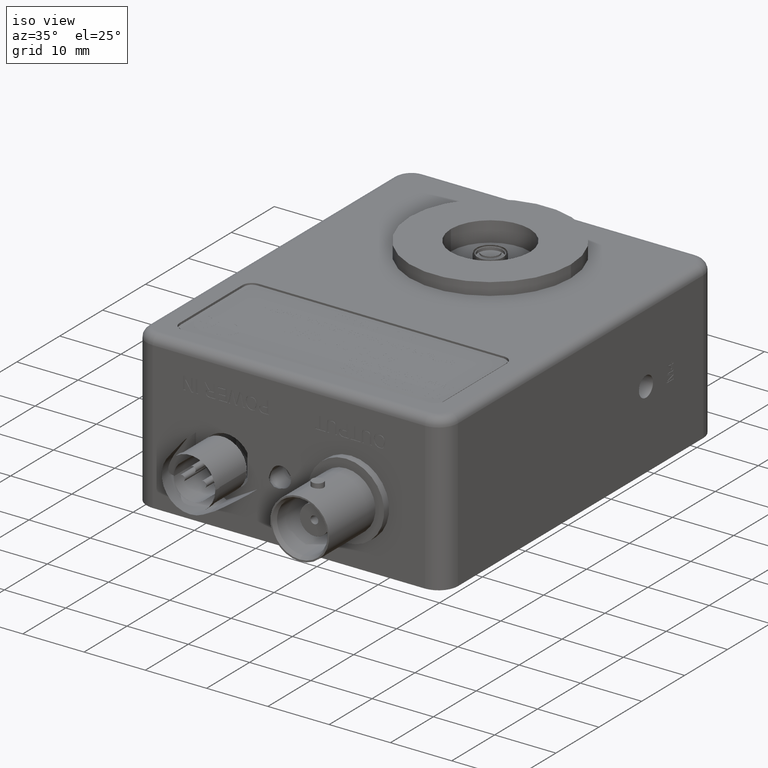
[diagram: clean part render]
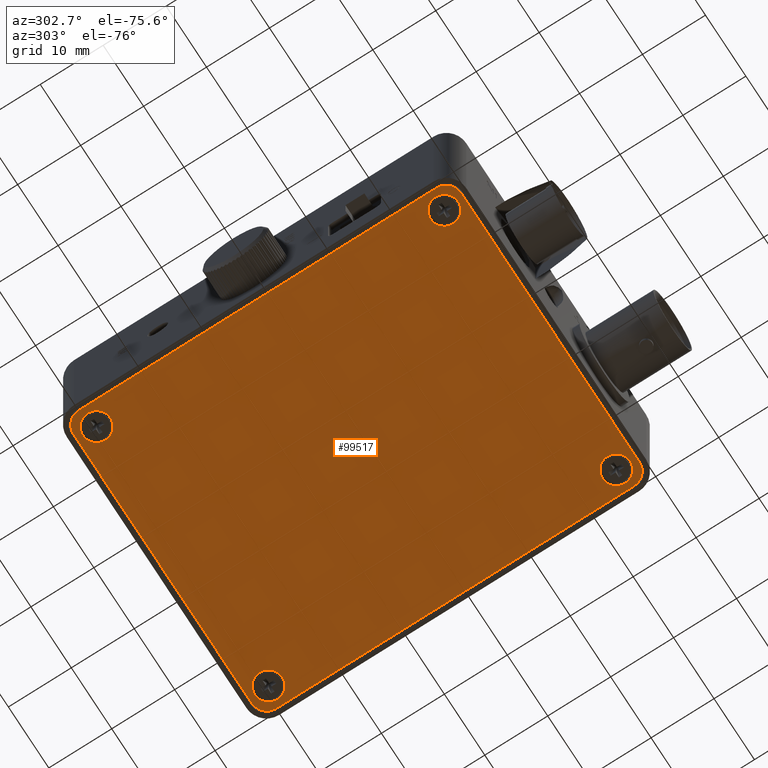
[diagram: tour spotlight — one face highlighted and labeled with its STEP entity id]
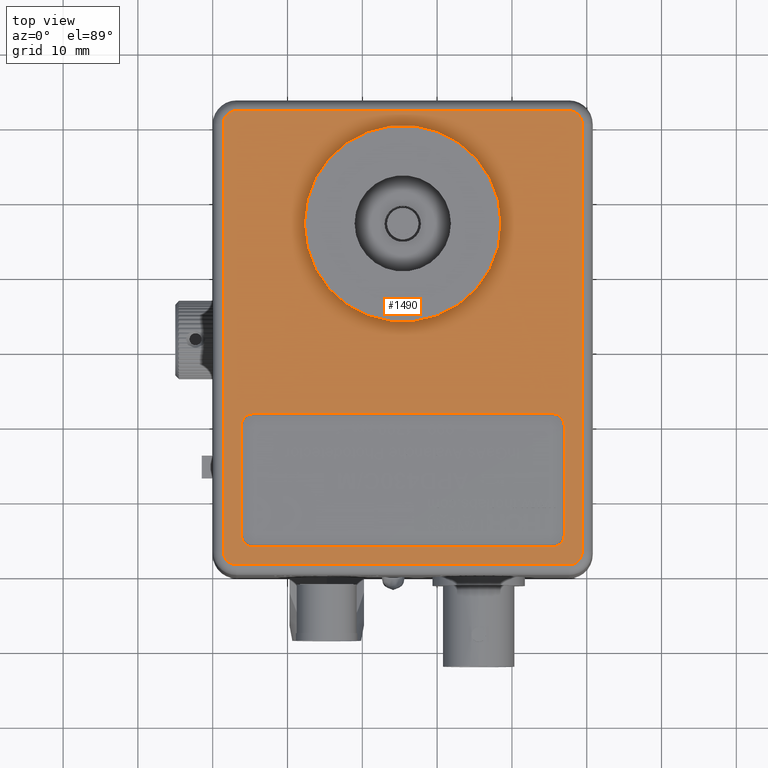
[diagram: tour spotlight — one face highlighted and labeled with its STEP entity id]
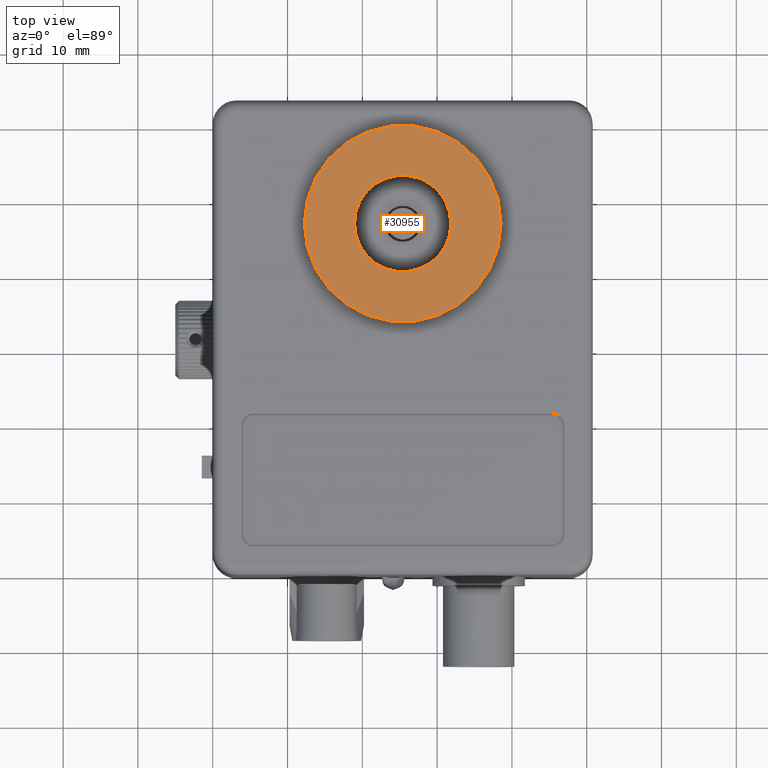
[diagram: tour spotlight — one face highlighted and labeled with its STEP entity id]
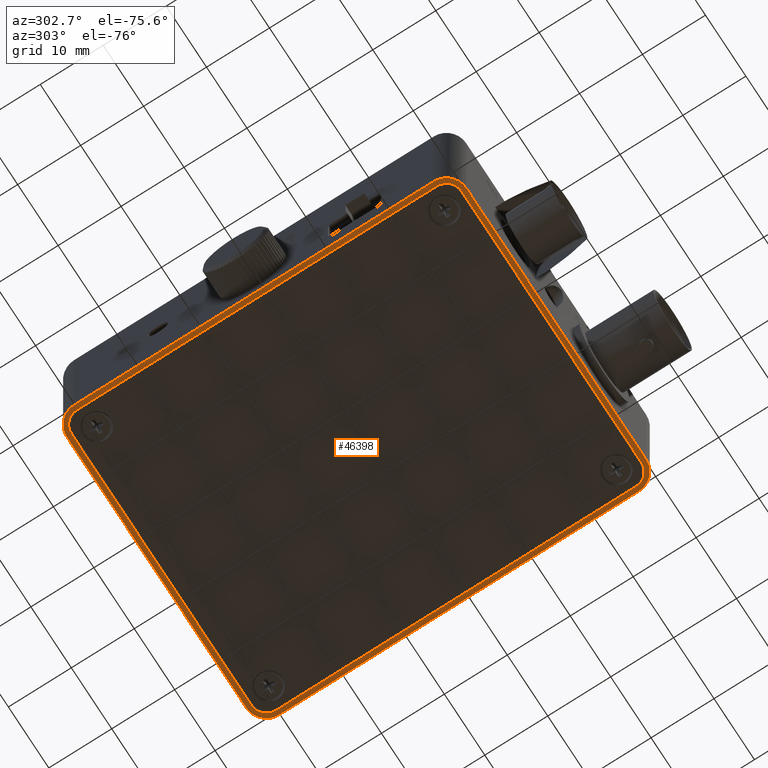
[diagram: tour spotlight — one face highlighted and labeled with its STEP entity id]
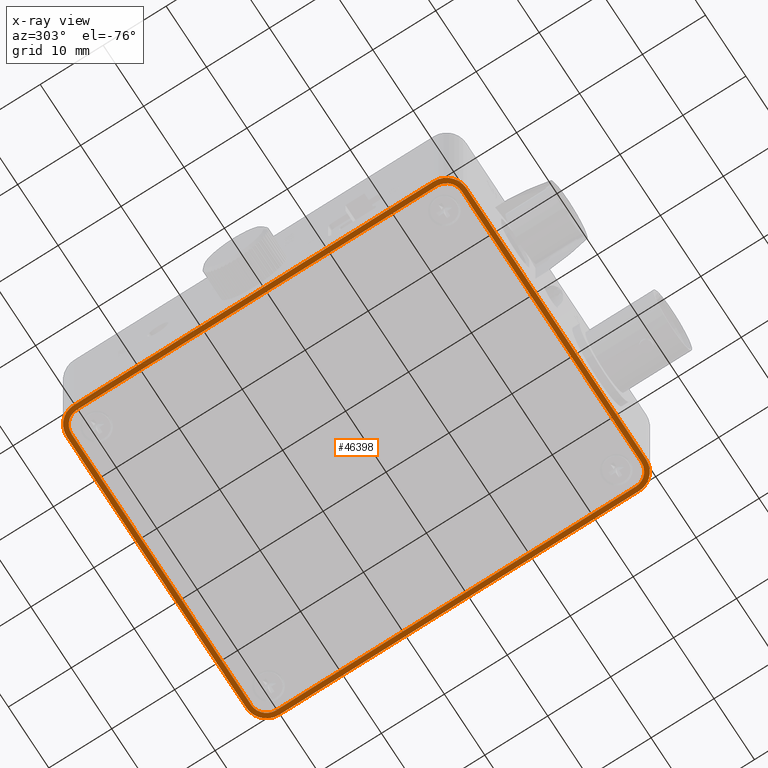
[diagram: x-ray of the same camera — body ghosted, this tour face saturated]
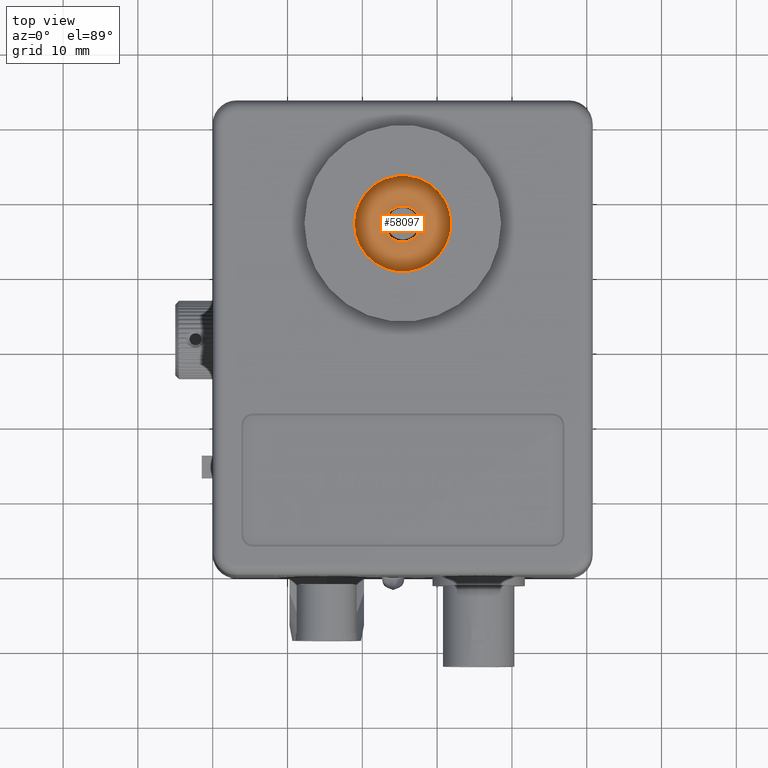
[diagram: tour spotlight — one face highlighted and labeled with its STEP entity id]
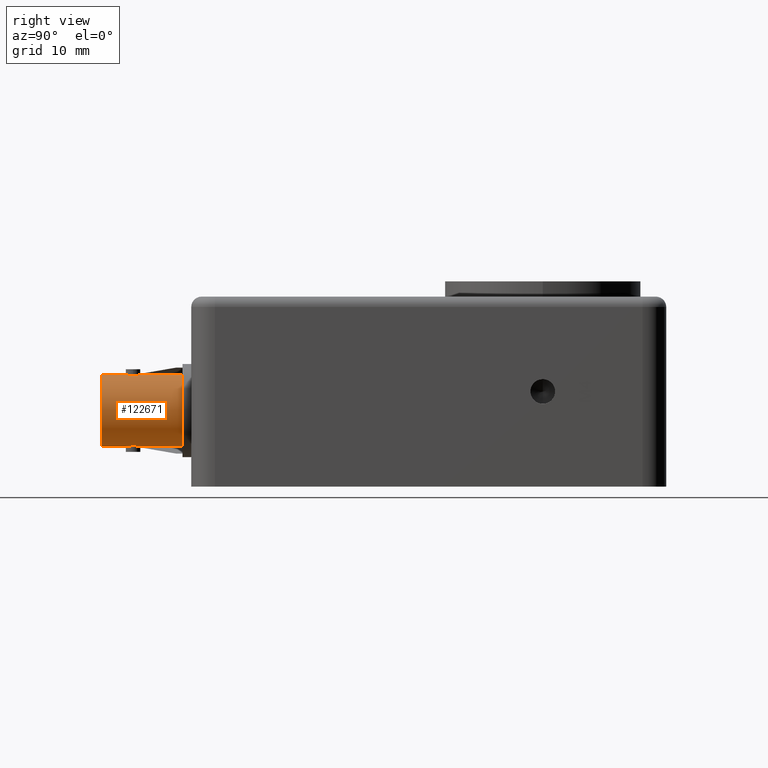
[diagram: tour spotlight — one face highlighted and labeled with its STEP entity id]
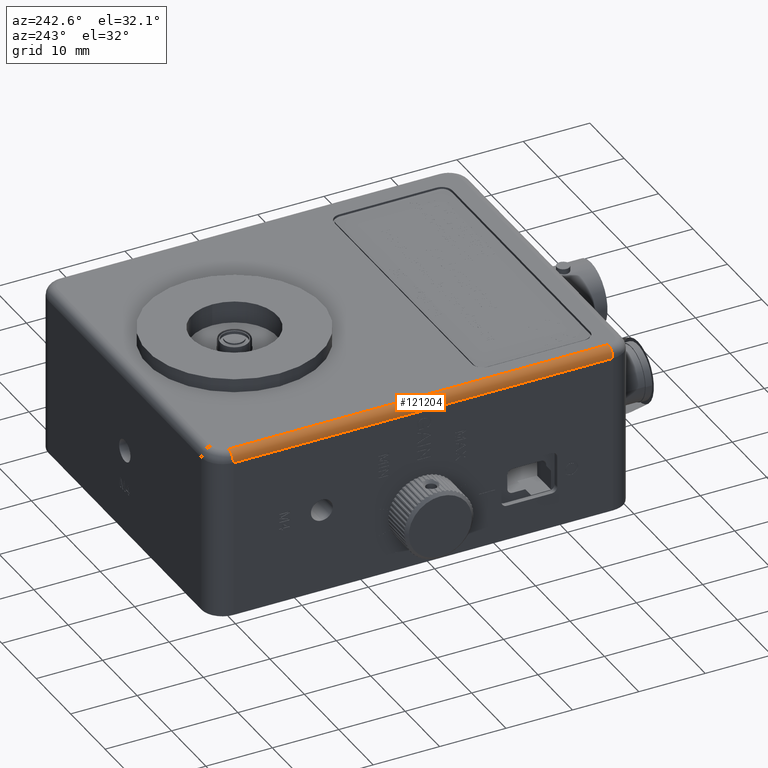
[diagram: tour spotlight — one face highlighted and labeled with its STEP entity id]
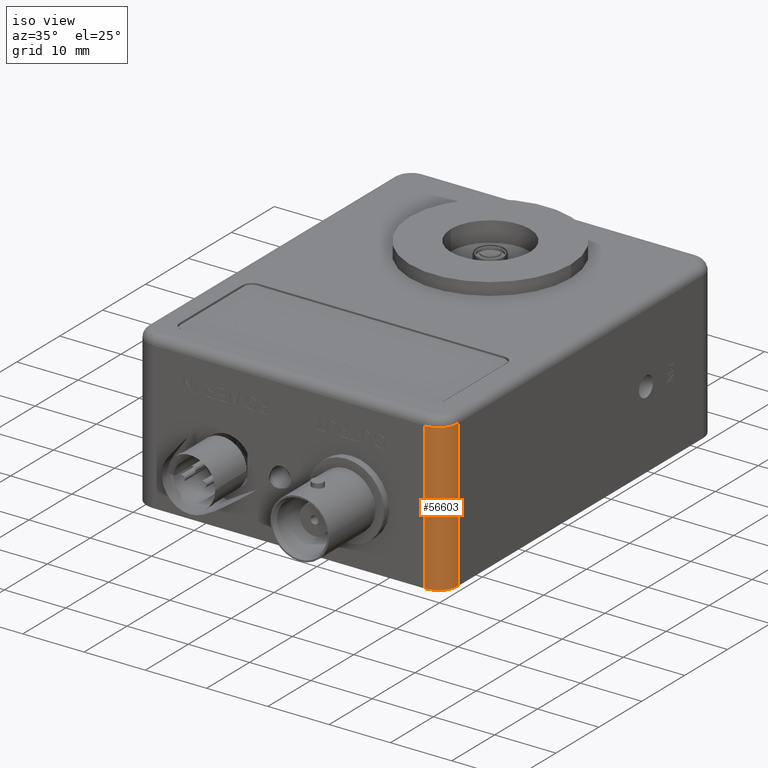
[diagram: tour spotlight — one face highlighted and labeled with its STEP entity id]
A machine part: a face-by-face anatomy tour. The part has 2462 B-rep faces; the first image is the clean iso view, then the 8 largest visible faces are spotlighted one at a time (largest first), each with its STEP entity span.

Face 1 — auxiliary view, entity #99517. In plain terms, the highlighted planar face has unit normal (0, 0, 1).
Definition (entity closure, byte-faithful):
#797 = CIRCLE ( 'NONE', #127661, 2.200000000000000600 ) ;
#1319 = EDGE_LOOP ( 'NONE', ( #59213, #28201 ) ) ;
#3153 = DIRECTION ( 'NONE',  ( -0.0000000000000000000, 1.000000000000000000, -0.0000000000000000000 ) ) ;
#3400 = ORIENTED_EDGE ( 'NONE', *, *, #43403, .T. ) ;
#3489 = AXIS2_PLACEMENT_3D ( 'NONE', #57198, #127380, #67217 ) ;
#5157 = LINE ( 'NONE', #90908, #112165 ) ;
#5551 = FACE_BOUND ( 'NONE', #89493, .T. ) ;
#5942 = PLANE ( 'NONE',  #99817 ) ;
#7509 = CIRCLE ( 'NONE', #68415, 2.200000000000000600 ) ;
#7916 = VERTEX_POINT ( 'NONE', #30430 ) ;
#11961 = EDGE_CURVE ( 'NONE', #52446, #99700, #39361, .T. ) ;
#12348 = CIRCLE ( 'NONE', #33730, 2.412999999999998500 ) ;
#13142 = ORIENTED_EDGE ( 'NONE', *, *, #102057, .F. ) ;
#13149 = AXIS2_PLACEMENT_3D ( 'NONE', #78609, #18438, #88622 ) ;
#13716 = EDGE_CURVE ( 'NONE', #87342, #75694, #19964, .T. ) ;
#14302 = CARTESIAN_POINT ( 'NONE',  ( 61.59499999999999900, 1.587499999999999900, 0.0000000000000000000 ) ) ;
#18438 = DIRECTION ( 'NONE',  ( -0.0000000000000000000, 1.000000000000000000, -0.0000000000000000000 ) ) ;
#18517 = CARTESIAN_POINT ( 'NONE',  ( 59.18199999999999500, 1.587499999999999900, -46.48199999999999900 ) ) ;
#19530 = VERTEX_POINT ( 'NONE', #81972 ) ;
#19964 = CIRCLE ( 'NONE', #95841, 2.412999999999999800 ) ;
#24430 = DIRECTION ( 'NONE',  ( 0.0000000000000000000, 0.0000000000000000000, -1.000000000000000000 ) ) ;
#26532 = AXIS2_PLACEMENT_3D ( 'NONE', #18517, #88720, #28632 ) ;
#26993 = LINE ( 'NONE', #117246, #124370 ) ;
#28201 = ORIENTED_EDGE ( 'NONE', *, *, #52852, .F. ) ;
#28632 = DIRECTION ( 'NONE',  ( 0.0000000000000000000, 0.0000000000000000000, -1.000000000000000000 ) ) ;
#29261 = CARTESIAN_POINT ( 'NONE',  ( 2.412999999999999800, 1.587499999999999900, -2.412999999999999800 ) ) ;
#29441 = ORIENTED_EDGE ( 'NONE', *, *, #62037, .F. ) ;
#30430 = CARTESIAN_POINT ( 'NONE',  ( 3.175000000000003400, 1.587499999999999900, -5.374999999999994700 ) ) ;
#30774 = DIRECTION ( 'NONE',  ( -1.000000000000000000, -0.0000000000000000000, -0.0000000000000000000 ) ) ;
#31332 = CARTESIAN_POINT ( 'NONE',  ( 61.59499999999999900, 1.587499999999999900, -46.48199999999999900 ) ) ;
#32419 = FACE_BOUND ( 'NONE', #32858, .T. ) ;
#32719 = VERTEX_POINT ( 'NONE', #86126 ) ;
#32858 = EDGE_LOOP ( 'NONE', ( #104621, #48513 ) ) ;
#33730 = AXIS2_PLACEMENT_3D ( 'NONE', #105578, #45406, #115606 ) ;
#34613 = CARTESIAN_POINT ( 'NONE',  ( 58.42000000000000200, 1.587499999999999900, -45.71999999999999900 ) ) ;
#36132 = EDGE_LOOP ( 'NONE', ( #3400, #114600, #112415, #85695, #56493, #91880, #38950, #126587 ) ) ;
#36686 = CARTESIAN_POINT ( 'NONE',  ( 3.175000000000002500, 1.587499999999999900, -47.91999999999999500 ) ) ;
#36887 = LINE ( 'NONE', #123590, #90275 ) ;
#37544 = DIRECTION ( 'NONE',  ( -0.0000000000000000000, 1.000000000000000000, -0.0000000000000000000 ) ) ;
#37654 = CARTESIAN_POINT ( 'NONE',  ( 58.41999999999999500, 1.587499999999999900, -0.9749999999999932100 ) ) ;
#38950 = ORIENTED_EDGE ( 'NONE', *, *, #66813, .T. ) ;
#39305 = AXIS2_PLACEMENT_3D ( 'NONE', #72614, #72477, #72309 ) ;
#39354 = DIRECTION ( 'NONE',  ( 8.986342084421918000E-016, 0.0000000000000000000, -1.000000000000000000 ) ) ;
#39361 = CIRCLE ( 'NONE', #39305, 2.200000000000000600 ) ;
#39366 = AXIS2_PLACEMENT_3D ( 'NONE', #29261, #99516, #39354 ) ;
#43403 = EDGE_CURVE ( 'NONE', #87424, #32719, #26993, .T. ) ;
#43843 = CIRCLE ( 'NONE', #3489, 2.200000000000000600 ) ;
#43962 = EDGE_LOOP ( 'NONE', ( #13142, #46177 ) ) ;
#44768 = DIRECTION ( 'NONE',  ( 0.0000000000000000000, 0.0000000000000000000, 1.000000000000000000 ) ) ;
#45280 = ORIENTED_EDGE ( 'NONE', *, *, #122247, .F. ) ;
#45406 = DIRECTION ( 'NONE',  ( -0.0000000000000000000, 1.000000000000000000, -0.0000000000000000000 ) ) ;
#45991 = VECTOR ( 'NONE', #24430, 1000.000000000000000 ) ;
#46177 = ORIENTED_EDGE ( 'NONE', *, *, #107415, .F. ) ;
#48034 = VERTEX_POINT ( 'NONE', #110656 ) ;
#48513 = ORIENTED_EDGE ( 'NONE', *, *, #124310, .F. ) ;
#50480 = CIRCLE ( 'NONE', #39366, 2.412999999999999800 ) ;
#52446 = VERTEX_POINT ( 'NONE', #74763 ) ;
#52486 = EDGE_CURVE ( 'NONE', #103745, #112743, #797, .T. ) ;
#52852 = EDGE_CURVE ( 'NONE', #99700, #52446, #85656, .T. ) ;
#55493 = CARTESIAN_POINT ( 'NONE',  ( 3.175000000000002000, 1.587499999999999900, -45.71999999999999900 ) ) ;
#56045 = FACE_BOUND ( 'NONE', #1319, .T. ) ;
#56252 = CARTESIAN_POINT ( 'NONE',  ( 3.175000000000002900, 1.587499999999999900, -3.174999999999993600 ) ) ;
#56493 = ORIENTED_EDGE ( 'NONE', *, *, #71032, .T. ) ;
#56635 = DIRECTION ( 'NONE',  ( 0.0000000000000000000, -1.000000000000000000, 0.0000000000000000000 ) ) ;
#57190 = CARTESIAN_POINT ( 'NONE',  ( 61.59499999999999900, 1.587499999999999900, -2.412999999999999800 ) ) ;
#57198 = CARTESIAN_POINT ( 'NONE',  ( 58.41999999999999500, 1.587499999999999900, -3.174999999999993600 ) ) ;
#59199 = CARTESIAN_POINT ( 'NONE',  ( 59.18199999999999500, 1.587499999999999900, -2.412999999999999800 ) ) ;
#59213 = ORIENTED_EDGE ( 'NONE', *, *, #11961, .F. ) ;
#60568 = AXIS2_PLACEMENT_3D ( 'NONE', #56252, #126426, #66255 ) ;
#62037 = EDGE_CURVE ( 'NONE', #19530, #95759, #43843, .T. ) ;
#62288 = CARTESIAN_POINT ( 'NONE',  ( 3.175000000000002000, 1.587499999999999900, -43.51999999999999600 ) ) ;
#63460 = DIRECTION ( 'NONE',  ( 1.000000000000000000, 0.0000000000000000000, 0.0000000000000000000 ) ) ;
#63503 = CARTESIAN_POINT ( 'NONE',  ( 58.41999999999999500, 1.587499999999999900, -3.174999999999993600 ) ) ;
#64728 = VERTEX_POINT ( 'NONE', #31332 ) ;
#65498 = DIRECTION ( 'NONE',  ( 0.0000000000000000000, 0.0000000000000000000, 1.000000000000000000 ) ) ;
#66086 = AXIS2_PLACEMENT_3D ( 'NONE', #97679, #37544, #107786 ) ;
#66255 = DIRECTION ( 'NONE',  ( 0.0000000000000000000, 0.0000000000000000000, 1.000000000000000000 ) ) ;
#66813 = EDGE_CURVE ( 'NONE', #106620, #114418, #5157, .T. ) ;
#67217 = DIRECTION ( 'NONE',  ( 0.0000000000000000000, 0.0000000000000000000, 1.000000000000000000 ) ) ;
#68415 = AXIS2_PLACEMENT_3D ( 'NONE', #63503, #3153, #73571 ) ;
#69260 = DIRECTION ( 'NONE',  ( 0.0000000000000000000, 0.0000000000000000000, -1.000000000000000000 ) ) ;
#70089 = EDGE_CURVE ( 'NONE', #64728, #106620, #102953, .T. ) ;
#71032 = EDGE_CURVE ( 'NONE', #75694, #64728, #72682, .T. ) ;
#72309 = DIRECTION ( 'NONE',  ( 0.0000000000000000000, 0.0000000000000000000, 1.000000000000000000 ) ) ;
#72477 = DIRECTION ( 'NONE',  ( -0.0000000000000000000, 1.000000000000000000, -0.0000000000000000000 ) ) ;
#72614 = CARTESIAN_POINT ( 'NONE',  ( 58.42000000000000200, 1.587499999999999900, -45.71999999999999900 ) ) ;
#72682 = LINE ( 'NONE', #14302, #45991 ) ;
#73571 = DIRECTION ( 'NONE',  ( 0.0000000000000000000, 0.0000000000000000000, 1.000000000000000000 ) ) ;
#74763 = CARTESIAN_POINT ( 'NONE',  ( 58.42000000000000200, 1.587499999999999900, -43.51999999999999600 ) ) ;
#75694 = VERTEX_POINT ( 'NONE', #57190 ) ;
#78609 = CARTESIAN_POINT ( 'NONE',  ( 3.175000000000002900, 1.587499999999999900, -3.174999999999993600 ) ) ;
#79276 = CARTESIAN_POINT ( 'NONE',  ( 2.412999999999998900, 1.587499999999999900, -48.89500000000000300 ) ) ;
#79363 = EDGE_CURVE ( 'NONE', #114418, #87424, #12348, .T. ) ;
#80721 = CARTESIAN_POINT ( 'NONE',  ( 59.18199999999998800, 1.587499999999999900, 0.0000000000000000000 ) ) ;
#80940 = CIRCLE ( 'NONE', #66086, 2.200000000000000600 ) ;
#81972 = CARTESIAN_POINT ( 'NONE',  ( 58.41999999999999500, 1.587499999999999900, -5.374999999999994700 ) ) ;
#82717 = CARTESIAN_POINT ( 'NONE',  ( 58.42000000000000200, 1.587499999999999900, -47.91999999999999500 ) ) ;
#82722 = FACE_BOUND ( 'NONE', #43962, .T. ) ;
#83239 = CIRCLE ( 'NONE', #60568, 2.200000000000000200 ) ;
#85656 = CIRCLE ( 'NONE', #102508, 2.200000000000000600 ) ;
#85695 = ORIENTED_EDGE ( 'NONE', *, *, #13716, .T. ) ;
#86126 = CARTESIAN_POINT ( 'NONE',  ( 0.0000000000000000000, 1.587499999999999900, -2.412999999999999800 ) ) ;
#87342 = VERTEX_POINT ( 'NONE', #80721 ) ;
#87424 = VERTEX_POINT ( 'NONE', #101758 ) ;
#88622 = DIRECTION ( 'NONE',  ( 0.0000000000000000000, 0.0000000000000000000, 1.000000000000000000 ) ) ;
#88720 = DIRECTION ( 'NONE',  ( -0.0000000000000000000, 1.000000000000000000, -0.0000000000000000000 ) ) ;
#89493 = EDGE_LOOP ( 'NONE', ( #45280, #29441 ) ) ;
#90275 = VECTOR ( 'NONE', #63460, 1000.000000000000000 ) ;
#90908 = CARTESIAN_POINT ( 'NONE',  ( 0.0000000000000000000, 1.587499999999999900, -48.89500000000000300 ) ) ;
#91880 = ORIENTED_EDGE ( 'NONE', *, *, #70089, .T. ) ;
#93857 = VERTEX_POINT ( 'NONE', #116121 ) ;
#95759 = VERTEX_POINT ( 'NONE', #37654 ) ;
#95841 = AXIS2_PLACEMENT_3D ( 'NONE', #59199, #129398, #69260 ) ;
#97070 = DIRECTION ( 'NONE',  ( -0.0000000000000000000, -0.0000000000000000000, 1.000000000000000000 ) ) ;
#97679 = CARTESIAN_POINT ( 'NONE',  ( 3.175000000000002000, 1.587499999999999900, -45.71999999999999900 ) ) ;
#99516 = DIRECTION ( 'NONE',  ( -0.0000000000000000000, 1.000000000000000000, -0.0000000000000000000 ) ) ;
#99517 = ADVANCED_FACE ( 'NONE', ( #32419, #56045, #5551, #82722, #109414 ), #5942, .F. ) ;
#99700 = VERTEX_POINT ( 'NONE', #82717 ) ;
#99817 = AXIS2_PLACEMENT_3D ( 'NONE', #116709, #56635, #126824 ) ;
#101758 = CARTESIAN_POINT ( 'NONE',  ( 0.0000000000000000000, 1.587499999999999900, -46.48199999999999900 ) ) ;
#102057 = EDGE_CURVE ( 'NONE', #93857, #7916, #83239, .T. ) ;
#102508 = AXIS2_PLACEMENT_3D ( 'NONE', #34613, #104907, #44768 ) ;
#102953 = CIRCLE ( 'NONE', #26532, 2.412999999999998500 ) ;
#103745 = VERTEX_POINT ( 'NONE', #62288 ) ;
#104621 = ORIENTED_EDGE ( 'NONE', *, *, #52486, .F. ) ;
#104907 = DIRECTION ( 'NONE',  ( -0.0000000000000000000, 1.000000000000000000, -0.0000000000000000000 ) ) ;
#105578 = CARTESIAN_POINT ( 'NONE',  ( 2.412999999999999800, 1.587499999999999900, -46.48199999999999900 ) ) ;
#106620 = VERTEX_POINT ( 'NONE', #117478 ) ;
#107415 = EDGE_CURVE ( 'NONE', #7916, #93857, #116677, .T. ) ;
#107786 = DIRECTION ( 'NONE',  ( 0.0000000000000000000, 0.0000000000000000000, 1.000000000000000000 ) ) ;
#107993 = EDGE_CURVE ( 'NONE', #32719, #48034, #50480, .T. ) ;
#109414 = FACE_OUTER_BOUND ( 'NONE', #36132, .T. ) ;
#110656 = CARTESIAN_POINT ( 'NONE',  ( 2.412999999999998900, 1.587499999999999900, 0.0000000000000000000 ) ) ;
#112165 = VECTOR ( 'NONE', #30774, 1000.000000000000000 ) ;
#112415 = ORIENTED_EDGE ( 'NONE', *, *, #129128, .T. ) ;
#112743 = VERTEX_POINT ( 'NONE', #36686 ) ;
#114418 = VERTEX_POINT ( 'NONE', #79276 ) ;
#114600 = ORIENTED_EDGE ( 'NONE', *, *, #107993, .T. ) ;
#115606 = DIRECTION ( 'NONE',  ( 0.0000000000000000000, 0.0000000000000000000, -1.000000000000000000 ) ) ;
#116121 = CARTESIAN_POINT ( 'NONE',  ( 3.175000000000002900, 1.587499999999999900, -0.9749999999999936500 ) ) ;
#116677 = CIRCLE ( 'NONE', #13149, 2.200000000000000200 ) ;
#116709 = CARTESIAN_POINT ( 'NONE',  ( 0.0000000000000000000, 1.587499999999999900, -48.89500000000000300 ) ) ;
#117246 = CARTESIAN_POINT ( 'NONE',  ( 0.0000000000000000000, 1.587499999999999900, 0.0000000000000000000 ) ) ;
#117478 = CARTESIAN_POINT ( 'NONE',  ( 59.18199999999998800, 1.587499999999999900, -48.89500000000000300 ) ) ;
#122247 = EDGE_CURVE ( 'NONE', #95759, #19530, #7509, .T. ) ;
#123590 = CARTESIAN_POINT ( 'NONE',  ( 0.0000000000000000000, 1.587499999999999900, 0.0000000000000000000 ) ) ;
#124310 = EDGE_CURVE ( 'NONE', #112743, #103745, #80940, .T. ) ;
#124370 = VECTOR ( 'NONE', #97070, 1000.000000000000000 ) ;
#125637 = DIRECTION ( 'NONE',  ( -0.0000000000000000000, 1.000000000000000000, -0.0000000000000000000 ) ) ;
#126426 = DIRECTION ( 'NONE',  ( -0.0000000000000000000, 1.000000000000000000, -0.0000000000000000000 ) ) ;
#126587 = ORIENTED_EDGE ( 'NONE', *, *, #79363, .T. ) ;
#126824 = DIRECTION ( 'NONE',  ( 0.0000000000000000000, -0.0000000000000000000, -1.000000000000000000 ) ) ;
#127380 = DIRECTION ( 'NONE',  ( -0.0000000000000000000, 1.000000000000000000, -0.0000000000000000000 ) ) ;
#127661 = AXIS2_PLACEMENT_3D ( 'NONE', #55493, #125637, #65498 ) ;
#129128 = EDGE_CURVE ( 'NONE', #48034, #87342, #36887, .T. ) ;
#129398 = DIRECTION ( 'NONE',  ( -0.0000000000000000000, 1.000000000000000000, -0.0000000000000000000 ) ) ;

Face 2 — top view, entity #1490. In plain terms, the highlighted planar face has unit normal (0, 0, -1).
Definition (entity closure, byte-faithful):
#840 = LINE ( 'NONE', #36320, #24567 ) ;
#963 = ORIENTED_EDGE ( 'NONE', *, *, #17775, .F. ) ;
#1366 = ORIENTED_EDGE ( 'NONE', *, *, #4163, .F. ) ;
#1490 = ADVANCED_FACE ( 'NONE', ( #59475, #56367, #109735 ), #101130, .F. ) ;
#4163 = EDGE_CURVE ( 'NONE', #76035, #122600, #18212, .T. ) ;
#5881 = CARTESIAN_POINT ( 'NONE',  ( 3.174999999999999800, 1.397000000000000000, 25.39999999999999900 ) ) ;
#5894 = EDGE_CURVE ( 'NONE', #40475, #88508, #77343, .T. ) ;
#6683 = AXIS2_PLACEMENT_3D ( 'NONE', #78449, #78309, #78154 ) ;
#6985 = LINE ( 'NONE', #45138, #57464 ) ;
#7158 = CARTESIAN_POINT ( 'NONE',  ( 0.0000000000000000000, 1.397000000000002500, 25.39999999999999900 ) ) ;
#7381 = VECTOR ( 'NONE', #117918, 1000.000000000000000 ) ;
#8399 = EDGE_CURVE ( 'NONE', #83502, #117762, #74736, .T. ) ;
#8637 = ORIENTED_EDGE ( 'NONE', *, *, #5894, .T. ) ;
#8742 = CARTESIAN_POINT ( 'NONE',  ( 49.40299999999999900, 60.32500000000000300, 25.39999999999999900 ) ) ;
#9052 = VERTEX_POINT ( 'NONE', #27507 ) ;
#10336 = VERTEX_POINT ( 'NONE', #16543 ) ;
#11369 = VERTEX_POINT ( 'NONE', #113035 ) ;
#11552 = ORIENTED_EDGE ( 'NONE', *, *, #67377, .F. ) ;
#12649 = DIRECTION ( 'NONE',  ( 0.0000000000000000000, 1.000000000000000000, 0.0000000000000000000 ) ) ;
#14706 = VERTEX_POINT ( 'NONE', #5881 ) ;
#14847 = AXIS2_PLACEMENT_3D ( 'NONE', #118657, #118790, #118488 ) ;
#16185 = EDGE_LOOP ( 'NONE', ( #50539, #46494, #963, #1366, #11552, #35687, #69899, #115812 ) ) ;
#16543 = CARTESIAN_POINT ( 'NONE',  ( 46.98999999999999500, 5.397500000000004400, 25.39999999999999900 ) ) ;
#17363 = VERTEX_POINT ( 'NONE', #104144 ) ;
#17775 = EDGE_CURVE ( 'NONE', #122600, #9052, #119229, .T. ) ;
#18212 = CIRCLE ( 'NONE', #6683, 1.587499999999997700 ) ;
#19990 = EDGE_LOOP ( 'NONE', ( #121432, #122086 ) ) ;
#20512 = CARTESIAN_POINT ( 'NONE',  ( 45.40249999999999600, 3.810000000000005400, 25.39999999999999900 ) ) ;
#20683 = VECTOR ( 'NONE', #111227, 1000.000000000000000 ) ;
#22628 = CARTESIAN_POINT ( 'NONE',  ( 1.397000000000000000, 3.174999999999999800, 25.39999999999999900 ) ) ;
#22780 = EDGE_CURVE ( 'NONE', #11369, #17363, #124120, .T. ) ;
#24567 = VECTOR ( 'NONE', #116632, 1000.000000000000000 ) ;
#25277 = ORIENTED_EDGE ( 'NONE', *, *, #37204, .T. ) ;
#25562 = DIRECTION ( 'NONE',  ( 0.0000000000000000000, 0.0000000000000000000, 1.000000000000000000 ) ) ;
#26096 = DIRECTION ( 'NONE',  ( -0.0000000000000000000, -0.0000000000000000000, 1.000000000000000000 ) ) ;
#26562 = AXIS2_PLACEMENT_3D ( 'NONE', #37862, #108111, #47975 ) ;
#27004 = EDGE_CURVE ( 'NONE', #55251, #121103, #72495, .T. ) ;
#27507 = CARTESIAN_POINT ( 'NONE',  ( 3.809999999999999200, 5.397500000000004400, 25.39999999999999900 ) ) ;
#29906 = DIRECTION ( 'NONE',  ( -0.0000000000000000000, -0.0000000000000000000, 1.000000000000000000 ) ) ;
#30434 = CARTESIAN_POINT ( 'NONE',  ( 45.40249999999999600, 21.58999999999999600, 25.39999999999999900 ) ) ;
#33822 = CARTESIAN_POINT ( 'NONE',  ( 1.397000000000000000, 63.50000000000000000, 25.39999999999999900 ) ) ;
#35185 = DIRECTION ( 'NONE',  ( -0.0000000000000000000, -0.0000000000000000000, 1.000000000000000000 ) ) ;
#35687 = ORIENTED_EDGE ( 'NONE', *, *, #27004, .F. ) ;
#36320 = CARTESIAN_POINT ( 'NONE',  ( 45.40249999999999600, 3.810000000000005400, 25.39999999999999900 ) ) ;
#37204 = EDGE_CURVE ( 'NONE', #95157, #109101, #127419, .T. ) ;
#37807 = ORIENTED_EDGE ( 'NONE', *, *, #111270, .T. ) ;
#37822 = CARTESIAN_POINT ( 'NONE',  ( 45.40249999999999600, 20.00250000000000100, 25.39999999999999900 ) ) ;
#37862 = CARTESIAN_POINT ( 'NONE',  ( 45.40249999999999600, 5.397500000000004400, 25.39999999999999900 ) ) ;
#37949 = EDGE_LOOP ( 'NONE', ( #37807, #76541, #25277, #61274, #66115, #8637, #115544, #126383 ) ) ;
#38472 = DIRECTION ( 'NONE',  ( -1.000000000000000000, 0.0000000000000000000, 0.0000000000000000000 ) ) ;
#38491 = DIRECTION ( 'NONE',  ( -0.0000000000000000000, -0.0000000000000000000, 1.000000000000000000 ) ) ;
#38654 = CARTESIAN_POINT ( 'NONE',  ( 47.62500000000000000, 3.174999999999999800, 25.39999999999999900 ) ) ;
#40475 = VERTEX_POINT ( 'NONE', #121363 ) ;
#41416 = CARTESIAN_POINT ( 'NONE',  ( 3.810000000000001800, 20.00250000000000100, 25.39999999999999900 ) ) ;
#42952 = CARTESIAN_POINT ( 'NONE',  ( 5.397499999999999100, 21.58999999999999600, 25.39999999999999900 ) ) ;
#45138 = CARTESIAN_POINT ( 'NONE',  ( 46.98999999999999500, 5.397500000000004400, 25.39999999999999900 ) ) ;
#46494 = ORIENTED_EDGE ( 'NONE', *, *, #71627, .F. ) ;
#47935 = DIRECTION ( 'NONE',  ( -1.000000000000000000, 0.0000000000000000000, 0.0000000000000000000 ) ) ;
#47975 = DIRECTION ( 'NONE',  ( 1.000000000000000000, 0.0000000000000000000, 0.0000000000000000000 ) ) ;
#48240 = DIRECTION ( 'NONE',  ( -0.0000000000000000000, -0.0000000000000000000, 1.000000000000000000 ) ) ;
#49252 = AXIS2_PLACEMENT_3D ( 'NONE', #86223, #26096, #96358 ) ;
#50539 = ORIENTED_EDGE ( 'NONE', *, *, #91832, .F. ) ;
#50617 = LINE ( 'NONE', #80962, #20683 ) ;
#50711 = EDGE_CURVE ( 'NONE', #126330, #95157, #92111, .T. ) ;
#51597 = VERTEX_POINT ( 'NONE', #122989 ) ;
#55251 = VERTEX_POINT ( 'NONE', #89713 ) ;
#56367 = FACE_BOUND ( 'NONE', #16185, .T. ) ;
#57464 = VECTOR ( 'NONE', #125427, 1000.000000000000000 ) ;
#59475 = FACE_OUTER_BOUND ( 'NONE', #37949, .T. ) ;
#60141 = CARTESIAN_POINT ( 'NONE',  ( 3.809999999999999200, 5.397500000000004400, 25.39999999999999900 ) ) ;
#61274 = ORIENTED_EDGE ( 'NONE', *, *, #100301, .T. ) ;
#62429 = EDGE_CURVE ( 'NONE', #88508, #83502, #117344, .T. ) ;
#66115 = ORIENTED_EDGE ( 'NONE', *, *, #80112, .T. ) ;
#67107 = CARTESIAN_POINT ( 'NONE',  ( 5.397499999999999100, 21.58999999999999600, 25.39999999999999900 ) ) ;
#67377 = EDGE_CURVE ( 'NONE', #121103, #76035, #96416, .T. ) ;
#67636 = CARTESIAN_POINT ( 'NONE',  ( 1.397000000000000000, 60.32500000000000300, 25.39999999999999900 ) ) ;
#69720 = VECTOR ( 'NONE', #73212, 1000.000000000000000 ) ;
#69899 = ORIENTED_EDGE ( 'NONE', *, *, #110299, .F. ) ;
#70834 = VECTOR ( 'NONE', #104509, 1000.000000000000000 ) ;
#71627 = EDGE_CURVE ( 'NONE', #9052, #51597, #86530, .T. ) ;
#72495 = CIRCLE ( 'NONE', #98322, 1.587499999999998600 ) ;
#73212 = DIRECTION ( 'NONE',  ( -1.000000000000000000, -0.0000000000000000000, -0.0000000000000000000 ) ) ;
#74736 = CIRCLE ( 'NONE', #14847, 1.778000000000001800 ) ;
#75527 = AXIS2_PLACEMENT_3D ( 'NONE', #90043, #29906, #100184 ) ;
#76035 = VERTEX_POINT ( 'NONE', #67107 ) ;
#76228 = VERTEX_POINT ( 'NONE', #20512 ) ;
#76346 = AXIS2_PLACEMENT_3D ( 'NONE', #85731, #25562, #95837 ) ;
#76541 = ORIENTED_EDGE ( 'NONE', *, *, #50711, .T. ) ;
#77343 = CIRCLE ( 'NONE', #87757, 1.778000000000001800 ) ;
#77797 = CIRCLE ( 'NONE', #26562, 1.587499999999998600 ) ;
#78154 = DIRECTION ( 'NONE',  ( 1.000000000000000000, 0.0000000000000000000, 0.0000000000000000000 ) ) ;
#78309 = DIRECTION ( 'NONE',  ( 0.0000000000000000000, 0.0000000000000000000, 1.000000000000000000 ) ) ;
#78449 = CARTESIAN_POINT ( 'NONE',  ( 5.397499999999999100, 20.00250000000000100, 25.39999999999999900 ) ) ;
#80112 = EDGE_CURVE ( 'NONE', #14706, #40475, #84527, .T. ) ;
#80962 = CARTESIAN_POINT ( 'NONE',  ( 0.0000000000000000000, 62.10300000000000200, 25.39999999999999900 ) ) ;
#83383 = EDGE_CURVE ( 'NONE', #76228, #10336, #77797, .T. ) ;
#83502 = VERTEX_POINT ( 'NONE', #8742 ) ;
#84527 = LINE ( 'NONE', #7158, #7381 ) ;
#85731 = CARTESIAN_POINT ( 'NONE',  ( 5.397499999999999100, 5.397500000000004400, 25.39999999999999900 ) ) ;
#86223 = CARTESIAN_POINT ( 'NONE',  ( 3.174999999999999800, 60.32500000000000300, 25.39999999999999900 ) ) ;
#86530 = CIRCLE ( 'NONE', #76346, 1.587500000000000400 ) ;
#87757 = AXIS2_PLACEMENT_3D ( 'NONE', #38654, #38491, #38472 ) ;
#88508 = VERTEX_POINT ( 'NONE', #92916 ) ;
#89713 = CARTESIAN_POINT ( 'NONE',  ( 46.98999999999999500, 20.00250000000000100, 25.39999999999999900 ) ) ;
#90043 = CARTESIAN_POINT ( 'NONE',  ( 25.39999999999999900, 46.99000000000000200, 25.39999999999999900 ) ) ;
#90366 = DIRECTION ( 'NONE',  ( -2.969399993113330200E-017, -1.000000000000000000, -0.0000000000000000000 ) ) ;
#90640 = VECTOR ( 'NONE', #12649, 1000.000000000000000 ) ;
#91832 = EDGE_CURVE ( 'NONE', #51597, #76228, #840, .T. ) ;
#92111 = CIRCLE ( 'NONE', #49252, 1.777999999999999800 ) ;
#92539 = VECTOR ( 'NONE', #90366, 1000.000000000000000 ) ;
#92916 = CARTESIAN_POINT ( 'NONE',  ( 49.40300000000000600, 3.174999999999999800, 25.39999999999999900 ) ) ;
#94780 = CIRCLE ( 'NONE', #103258, 1.777999999999999800 ) ;
#95157 = VERTEX_POINT ( 'NONE', #67636 ) ;
#95345 = CARTESIAN_POINT ( 'NONE',  ( 25.39999999999999900, 46.99000000000000200, 25.39999999999999900 ) ) ;
#95837 = DIRECTION ( 'NONE',  ( -1.000000000000000000, 0.0000000000000000000, 0.0000000000000000000 ) ) ;
#96358 = DIRECTION ( 'NONE',  ( -1.000000000000000000, 0.0000000000000000000, 0.0000000000000000000 ) ) ;
#96416 = LINE ( 'NONE', #42952, #69720 ) ;
#98322 = AXIS2_PLACEMENT_3D ( 'NONE', #37822, #108064, #47935 ) ;
#100099 = DIRECTION ( 'NONE',  ( -1.000000000000000000, 0.0000000000000000000, -0.0000000000000000000 ) ) ;
#100184 = DIRECTION ( 'NONE',  ( -1.000000000000000000, 0.0000000000000000000, 0.0000000000000000000 ) ) ;
#100260 = DIRECTION ( 'NONE',  ( 0.0000000000000000000, 0.0000000000000000000, -1.000000000000000000 ) ) ;
#100301 = EDGE_CURVE ( 'NONE', #109101, #14706, #94780, .T. ) ;
#101130 = PLANE ( 'NONE',  #109175 ) ;
#101567 = CARTESIAN_POINT ( 'NONE',  ( 0.0000000000000000000, 63.50000000000000000, 25.39999999999999900 ) ) ;
#103258 = AXIS2_PLACEMENT_3D ( 'NONE', #108378, #48240, #118459 ) ;
#104144 = CARTESIAN_POINT ( 'NONE',  ( 38.54449999999999200, 46.99000000000000200, 25.39999999999999900 ) ) ;
#104509 = DIRECTION ( 'NONE',  ( 0.0000000000000000000, -1.000000000000000000, 0.0000000000000000000 ) ) ;
#105470 = DIRECTION ( 'NONE',  ( -1.000000000000000000, 0.0000000000000000000, 0.0000000000000000000 ) ) ;
#106245 = AXIS2_PLACEMENT_3D ( 'NONE', #95345, #35185, #105470 ) ;
#108064 = DIRECTION ( 'NONE',  ( 0.0000000000000000000, 0.0000000000000000000, 1.000000000000000000 ) ) ;
#108111 = DIRECTION ( 'NONE',  ( 0.0000000000000000000, 0.0000000000000000000, 1.000000000000000000 ) ) ;
#108378 = CARTESIAN_POINT ( 'NONE',  ( 3.174999999999999800, 3.174999999999999800, 25.39999999999999900 ) ) ;
#109101 = VERTEX_POINT ( 'NONE', #22628 ) ;
#109175 = AXIS2_PLACEMENT_3D ( 'NONE', #101567, #100260, #100099 ) ;
#109735 = FACE_BOUND ( 'NONE', #19990, .T. ) ;
#110299 = EDGE_CURVE ( 'NONE', #10336, #55251, #6985, .T. ) ;
#111227 = DIRECTION ( 'NONE',  ( -1.000000000000000000, 0.0000000000000000000, 0.0000000000000000000 ) ) ;
#111270 = EDGE_CURVE ( 'NONE', #117762, #126330, #50617, .T. ) ;
#112318 = CARTESIAN_POINT ( 'NONE',  ( 47.62500000000000000, 62.10300000000000900, 25.39999999999999900 ) ) ;
#112649 = CIRCLE ( 'NONE', #75527, 13.14449999999999400 ) ;
#113035 = CARTESIAN_POINT ( 'NONE',  ( 12.25550000000000700, 46.99000000000000200, 25.39999999999999900 ) ) ;
#114850 = EDGE_CURVE ( 'NONE', #17363, #11369, #112649, .T. ) ;
#115544 = ORIENTED_EDGE ( 'NONE', *, *, #62429, .T. ) ;
#115812 = ORIENTED_EDGE ( 'NONE', *, *, #83383, .F. ) ;
#116632 = DIRECTION ( 'NONE',  ( 1.000000000000000000, 2.168133328304970500E-017, -0.0000000000000000000 ) ) ;
#117344 = LINE ( 'NONE', #123780, #90640 ) ;
#117762 = VERTEX_POINT ( 'NONE', #112318 ) ;
#117918 = DIRECTION ( 'NONE',  ( 1.000000000000000000, -0.0000000000000000000, 0.0000000000000000000 ) ) ;
#118459 = DIRECTION ( 'NONE',  ( -1.000000000000000000, 0.0000000000000000000, 0.0000000000000000000 ) ) ;
#118488 = DIRECTION ( 'NONE',  ( -1.000000000000000000, 0.0000000000000000000, 0.0000000000000000000 ) ) ;
#118657 = CARTESIAN_POINT ( 'NONE',  ( 47.62500000000000000, 60.32500000000000300, 25.39999999999999900 ) ) ;
#118790 = DIRECTION ( 'NONE',  ( -0.0000000000000000000, -0.0000000000000000000, 1.000000000000000000 ) ) ;
#119229 = LINE ( 'NONE', #60141, #92539 ) ;
#121103 = VERTEX_POINT ( 'NONE', #30434 ) ;
#121363 = CARTESIAN_POINT ( 'NONE',  ( 47.62500000000000000, 1.397000000000002500, 25.39999999999999900 ) ) ;
#121432 = ORIENTED_EDGE ( 'NONE', *, *, #22780, .F. ) ;
#122086 = ORIENTED_EDGE ( 'NONE', *, *, #114850, .F. ) ;
#122600 = VERTEX_POINT ( 'NONE', #41416 ) ;
#122989 = CARTESIAN_POINT ( 'NONE',  ( 5.397499999999999100, 3.810000000000007600, 25.39999999999999900 ) ) ;
#123780 = CARTESIAN_POINT ( 'NONE',  ( 49.40299999999999900, 63.50000000000000000, 25.39999999999999900 ) ) ;
#124120 = CIRCLE ( 'NONE', #106245, 13.14449999999999400 ) ;
#125427 = DIRECTION ( 'NONE',  ( 0.0000000000000000000, 1.000000000000000000, 0.0000000000000000000 ) ) ;
#126330 = VERTEX_POINT ( 'NONE', #128638 ) ;
#126383 = ORIENTED_EDGE ( 'NONE', *, *, #8399, .T. ) ;
#127419 = LINE ( 'NONE', #33822, #70834 ) ;
#128638 = CARTESIAN_POINT ( 'NONE',  ( 3.174999999999999800, 62.10300000000000200, 25.39999999999999900 ) ) ;

Face 3 — top view, entity #30955. In plain terms, the highlighted planar face has unit normal (0, 0, 1).
Definition (entity closure, byte-faithful):
#13875 = AXIS2_PLACEMENT_3D ( 'NONE', #130404, #90428, #30285 ) ;
#14445 = DIRECTION ( 'NONE',  ( 0.0000000000000000000, 0.0000000000000000000, 1.000000000000000000 ) ) ;
#15615 = EDGE_CURVE ( 'NONE', #66638, #106047, #121414, .T. ) ;
#20168 = PLANE ( 'NONE',  #13875 ) ;
#20932 = CARTESIAN_POINT ( 'NONE',  ( 25.39999999999999900, 46.99000000000000200, 27.43199999999999900 ) ) ;
#21988 = ORIENTED_EDGE ( 'NONE', *, *, #15615, .F. ) ;
#29105 = EDGE_LOOP ( 'NONE', ( #109121, #21988 ) ) ;
#30285 = DIRECTION ( 'NONE',  ( 1.000000000000000000, 0.0000000000000000000, -0.0000000000000000000 ) ) ;
#30955 = ADVANCED_FACE ( 'NONE', ( #76416, #126670 ), #20168, .T. ) ;
#31045 = DIRECTION ( 'NONE',  ( 1.000000000000000000, 0.0000000000000000000, 0.0000000000000000000 ) ) ;
#33116 = CARTESIAN_POINT ( 'NONE',  ( 25.39999999999999900, 46.99000000000000200, 27.43199999999999900 ) ) ;
#36414 = EDGE_LOOP ( 'NONE', ( #72930, #114216 ) ) ;
#36823 = CIRCLE ( 'NONE', #70632, 13.14449999999999700 ) ;
#43230 = DIRECTION ( 'NONE',  ( 1.000000000000000000, 0.0000000000000000000, 0.0000000000000000000 ) ) ;
#43418 = DIRECTION ( 'NONE',  ( 0.0000000000000000000, 0.0000000000000000000, 1.000000000000000000 ) ) ;
#44556 = EDGE_CURVE ( 'NONE', #106047, #66638, #85247, .T. ) ;
#66638 = VERTEX_POINT ( 'NONE', #119056 ) ;
#70632 = AXIS2_PLACEMENT_3D ( 'NONE', #20932, #91186, #31045 ) ;
#72930 = ORIENTED_EDGE ( 'NONE', *, *, #91643, .T. ) ;
#74650 = CARTESIAN_POINT ( 'NONE',  ( 25.39999999999999900, 46.99000000000000200, 27.43199999999999900 ) ) ;
#76416 = FACE_BOUND ( 'NONE', #29105, .T. ) ;
#79576 = CARTESIAN_POINT ( 'NONE',  ( 38.54449999999999200, 46.99000000000000200, 27.43199999999999900 ) ) ;
#84730 = DIRECTION ( 'NONE',  ( 1.000000000000000000, 0.0000000000000000000, 0.0000000000000000000 ) ) ;
#85247 = CIRCLE ( 'NONE', #107341, 6.438899999999997600 ) ;
#85461 = EDGE_CURVE ( 'NONE', #101653, #100876, #36823, .T. ) ;
#90428 = DIRECTION ( 'NONE',  ( 0.0000000000000000000, 0.0000000000000000000, 1.000000000000000000 ) ) ;
#91186 = DIRECTION ( 'NONE',  ( 0.0000000000000000000, 0.0000000000000000000, 1.000000000000000000 ) ) ;
#91643 = EDGE_CURVE ( 'NONE', #100876, #101653, #115753, .T. ) ;
#97739 = AXIS2_PLACEMENT_3D ( 'NONE', #74650, #14445, #84730 ) ;
#100876 = VERTEX_POINT ( 'NONE', #102922 ) ;
#101653 = VERTEX_POINT ( 'NONE', #79576 ) ;
#102922 = CARTESIAN_POINT ( 'NONE',  ( 12.25550000000000700, 46.99000000000000200, 27.43199999999999900 ) ) ;
#103366 = DIRECTION ( 'NONE',  ( 0.0000000000000000000, 0.0000000000000000000, 1.000000000000000000 ) ) ;
#103555 = CARTESIAN_POINT ( 'NONE',  ( 25.39999999999999900, 46.99000000000000200, 27.43199999999999900 ) ) ;
#106047 = VERTEX_POINT ( 'NONE', #117200 ) ;
#107341 = AXIS2_PLACEMENT_3D ( 'NONE', #33116, #103366, #43230 ) ;
#109121 = ORIENTED_EDGE ( 'NONE', *, *, #44556, .F. ) ;
#111797 = AXIS2_PLACEMENT_3D ( 'NONE', #103555, #43418, #113614 ) ;
#113614 = DIRECTION ( 'NONE',  ( 1.000000000000000000, 0.0000000000000000000, 0.0000000000000000000 ) ) ;
#114216 = ORIENTED_EDGE ( 'NONE', *, *, #85461, .T. ) ;
#115753 = CIRCLE ( 'NONE', #111797, 13.14449999999999700 ) ;
#117200 = CARTESIAN_POINT ( 'NONE',  ( 31.83889999999999500, 46.99000000000000200, 27.43199999999999900 ) ) ;
#119056 = CARTESIAN_POINT ( 'NONE',  ( 18.96110000000000200, 46.99000000000000200, 27.43199999999999900 ) ) ;
#121414 = CIRCLE ( 'NONE', #97739, 6.438899999999997600 ) ;
#126670 = FACE_OUTER_BOUND ( 'NONE', #36414, .T. ) ;
#130404 = CARTESIAN_POINT ( 'NONE',  ( 25.39999999999999900, 46.99000000000000200, 27.43199999999999900 ) ) ;

Face 4 — auxiliary view, entity #46398. An x-ray twin of the same camera follows (body ghosted, this face saturated) — the face is partly hidden behind the body. In plain terms, the highlighted planar face has unit normal (0, 0, -1).
Definition (entity closure, byte-faithful):
#2571 = EDGE_CURVE ( 'NONE', #125600, #46325, #23060, .T. ) ;
#4658 = AXIS2_PLACEMENT_3D ( 'NONE', #69467, #9200, #79588 ) ;
#6140 = VERTEX_POINT ( 'NONE', #13750 ) ;
#7053 = DIRECTION ( 'NONE',  ( 0.0000000000000000000, 0.0000000000000000000, -1.000000000000000000 ) ) ;
#7437 = EDGE_CURVE ( 'NONE', #114138, #84625, #130139, .T. ) ;
#8018 = VECTOR ( 'NONE', #23353, 1000.000000000000000 ) ;
#8033 = VERTEX_POINT ( 'NONE', #22460 ) ;
#9194 = EDGE_CURVE ( 'NONE', #68890, #37414, #86793, .T. ) ;
#9200 = DIRECTION ( 'NONE',  ( 0.0000000000000000000, 0.0000000000000000000, -1.000000000000000000 ) ) ;
#13750 = CARTESIAN_POINT ( 'NONE',  ( 3.174999999999999800, 63.50000000000000000, 0.0000000000000000000 ) ) ;
#15487 = ORIENTED_EDGE ( 'NONE', *, *, #7437, .F. ) ;
#16611 = CARTESIAN_POINT ( 'NONE',  ( 47.62500000000000000, 0.7620000000000009000, 0.0000000000000000000 ) ) ;
#17814 = DIRECTION ( 'NONE',  ( 0.0000000000000000000, 0.0000000000000000000, -1.000000000000000000 ) ) ;
#18984 = CARTESIAN_POINT ( 'NONE',  ( 50.79999999999999700, 60.32500000000000300, 0.0000000000000000000 ) ) ;
#20336 = CIRCLE ( 'NONE', #4658, 2.412999999999998500 ) ;
#20422 = CIRCLE ( 'NONE', #110627, 3.174999999999999800 ) ;
#21529 = EDGE_CURVE ( 'NONE', #32920, #109498, #61633, .T. ) ;
#22460 = CARTESIAN_POINT ( 'NONE',  ( 3.174999999999999800, 62.73800000000000000, 0.0000000000000000000 ) ) ;
#23060 = LINE ( 'NONE', #112566, #100056 ) ;
#23353 = DIRECTION ( 'NONE',  ( 0.0000000000000000000, 1.000000000000000000, 0.0000000000000000000 ) ) ;
#24844 = CARTESIAN_POINT ( 'NONE',  ( 0.0000000000000000000, 60.32500000000000300, 0.0000000000000000000 ) ) ;
#25488 = ORIENTED_EDGE ( 'NONE', *, *, #71782, .F. ) ;
#26024 = CIRCLE ( 'NONE', #121699, 3.174999999999999800 ) ;
#26789 = EDGE_LOOP ( 'NONE', ( #106247, #87032, #41840, #111855, #59102, #125818, #25488, #65817 ) ) ;
#30983 = CARTESIAN_POINT ( 'NONE',  ( 3.174999999999999800, 60.32500000000000300, 0.0000000000000000000 ) ) ;
#32920 = VERTEX_POINT ( 'NONE', #128685 ) ;
#37001 = CARTESIAN_POINT ( 'NONE',  ( 3.174999999999999800, 0.0000000000000000000, 0.0000000000000000000 ) ) ;
#37414 = VERTEX_POINT ( 'NONE', #16611 ) ;
#39430 = AXIS2_PLACEMENT_3D ( 'NONE', #47688, #17814, #88013 ) ;
#39525 = ORIENTED_EDGE ( 'NONE', *, *, #9194, .F. ) ;
#40161 = DIRECTION ( 'NONE',  ( 0.0000000000000000000, 0.0000000000000000000, -1.000000000000000000 ) ) ;
#41091 = DIRECTION ( 'NONE',  ( -1.000000000000000000, 0.0000000000000000000, 0.0000000000000000000 ) ) ;
#41840 = ORIENTED_EDGE ( 'NONE', *, *, #86413, .F. ) ;
#43779 = EDGE_CURVE ( 'NONE', #68250, #46325, #20422, .T. ) ;
#44979 = DIRECTION ( 'NONE',  ( 0.0000000000000000000, 0.0000000000000000000, -1.000000000000000000 ) ) ;
#45487 = EDGE_CURVE ( 'NONE', #90407, #90225, #20336, .T. ) ;
#45806 = CARTESIAN_POINT ( 'NONE',  ( 0.0000000000000000000, 0.0000000000000000000, 0.0000000000000000000 ) ) ;
#45912 = ORIENTED_EDGE ( 'NONE', *, *, #45487, .F. ) ;
#46325 = VERTEX_POINT ( 'NONE', #127138 ) ;
#46398 = ADVANCED_FACE ( 'NONE', ( #120009, #69757 ), #117893, .T. ) ;
#46402 = VERTEX_POINT ( 'NONE', #77980 ) ;
#46591 = AXIS2_PLACEMENT_3D ( 'NONE', #30983, #101256, #41091 ) ;
#46660 = CARTESIAN_POINT ( 'NONE',  ( 0.7620000000000001200, 3.175000000000000300, 0.0000000000000000000 ) ) ;
#47688 = CARTESIAN_POINT ( 'NONE',  ( 0.0000000000000000000, 63.50000000000000000, 0.0000000000000000000 ) ) ;
#49312 = ORIENTED_EDGE ( 'NONE', *, *, #68164, .F. ) ;
#49543 = AXIS2_PLACEMENT_3D ( 'NONE', #129743, #129616, #129341 ) ;
#50588 = VECTOR ( 'NONE', #68564, 1000.000000000000000 ) ;
#51269 = CARTESIAN_POINT ( 'NONE',  ( 50.03799999999999700, 60.32500000000000300, 0.0000000000000000000 ) ) ;
#51713 = VECTOR ( 'NONE', #61326, 1000.000000000000000 ) ;
#52146 = AXIS2_PLACEMENT_3D ( 'NONE', #100330, #40161, #110414 ) ;
#53426 = LINE ( 'NONE', #92116, #76911 ) ;
#55318 = CARTESIAN_POINT ( 'NONE',  ( 3.174999999999999800, 3.174999999999999800, 0.0000000000000000000 ) ) ;
#56485 = VERTEX_POINT ( 'NONE', #69626 ) ;
#56920 = LINE ( 'NONE', #95858, #77278 ) ;
#57272 = EDGE_CURVE ( 'NONE', #32920, #121605, #110064, .T. ) ;
#58291 = LINE ( 'NONE', #45806, #81841 ) ;
#59102 = ORIENTED_EDGE ( 'NONE', *, *, #2571, .F. ) ;
#61326 = DIRECTION ( 'NONE',  ( 0.0000000000000000000, -1.000000000000000000, 0.0000000000000000000 ) ) ;
#61633 = LINE ( 'NONE', #113796, #8018 ) ;
#63043 = DIRECTION ( 'NONE',  ( -1.000000000000000000, 0.0000000000000000000, 0.0000000000000000000 ) ) ;
#63078 = DIRECTION ( 'NONE',  ( 0.0000000000000000000, 0.0000000000000000000, -1.000000000000000000 ) ) ;
#63318 = CARTESIAN_POINT ( 'NONE',  ( 3.174999999999999800, 3.174999999999999800, 0.0000000000000000000 ) ) ;
#65323 = DIRECTION ( 'NONE',  ( -1.000000000000000000, 0.0000000000000000000, 0.0000000000000000000 ) ) ;
#65646 = EDGE_CURVE ( 'NONE', #90225, #68890, #105113, .T. ) ;
#65817 = ORIENTED_EDGE ( 'NONE', *, *, #66420, .T. ) ;
#66420 = EDGE_CURVE ( 'NONE', #46402, #109498, #82568, .T. ) ;
#66881 = EDGE_LOOP ( 'NONE', ( #39525, #112090, #45912, #101266, #126254, #49312, #15487, #102608 ) ) ;
#67324 = CARTESIAN_POINT ( 'NONE',  ( 47.62500000000000000, 3.174999999999999800, 0.0000000000000000000 ) ) ;
#67753 = AXIS2_PLACEMENT_3D ( 'NONE', #63318, #63078, #63043 ) ;
#68164 = EDGE_CURVE ( 'NONE', #84625, #56485, #56920, .T. ) ;
#68250 = VERTEX_POINT ( 'NONE', #37001 ) ;
#68564 = DIRECTION ( 'NONE',  ( -1.000000000000000000, -0.0000000000000000000, -0.0000000000000000000 ) ) ;
#68890 = VERTEX_POINT ( 'NONE', #110743 ) ;
#69467 = CARTESIAN_POINT ( 'NONE',  ( 47.62500000000000000, 60.32500000000000300, 0.0000000000000000000 ) ) ;
#69626 = CARTESIAN_POINT ( 'NONE',  ( 0.7620000000000005700, 60.32500000000000300, 0.0000000000000000000 ) ) ;
#69757 = FACE_OUTER_BOUND ( 'NONE', #26789, .T. ) ;
#71642 = LINE ( 'NONE', #82937, #95217 ) ;
#71782 = EDGE_CURVE ( 'NONE', #46402, #6140, #127494, .T. ) ;
#71881 = DIRECTION ( 'NONE',  ( -1.000000000000000000, -4.390469989817565300E-017, 0.0000000000000000000 ) ) ;
#72305 = CIRCLE ( 'NONE', #46591, 2.412999999999999400 ) ;
#72997 = CARTESIAN_POINT ( 'NONE',  ( 47.62500000000000000, 62.73800000000000000, 0.0000000000000000000 ) ) ;
#75977 = CARTESIAN_POINT ( 'NONE',  ( 47.62500000000000000, 0.0000000000000000000, 0.0000000000000000000 ) ) ;
#76911 = VECTOR ( 'NONE', #71881, 1000.000000000000000 ) ;
#77278 = VECTOR ( 'NONE', #105969, 1000.000000000000000 ) ;
#77461 = DIRECTION ( 'NONE',  ( -1.000000000000000000, 0.0000000000000000000, 0.0000000000000000000 ) ) ;
#77980 = CARTESIAN_POINT ( 'NONE',  ( 47.62500000000000000, 63.50000000000000000, 0.0000000000000000000 ) ) ;
#79588 = DIRECTION ( 'NONE',  ( -1.000000000000000000, 0.0000000000000000000, 0.0000000000000000000 ) ) ;
#81669 = EDGE_CURVE ( 'NONE', #56485, #8033, #72305, .T. ) ;
#81841 = VECTOR ( 'NONE', #116007, 1000.000000000000000 ) ;
#82568 = CIRCLE ( 'NONE', #52146, 3.174999999999997200 ) ;
#82937 = CARTESIAN_POINT ( 'NONE',  ( 3.174999999999999800, 62.73800000000000000, 0.0000000000000000000 ) ) ;
#84625 = VERTEX_POINT ( 'NONE', #46660 ) ;
#86413 = EDGE_CURVE ( 'NONE', #68250, #121605, #58291, .T. ) ;
#86793 = CIRCLE ( 'NONE', #49543, 2.412999999999998500 ) ;
#87032 = ORIENTED_EDGE ( 'NONE', *, *, #57272, .T. ) ;
#88013 = DIRECTION ( 'NONE',  ( -1.000000000000000000, 0.0000000000000000000, -0.0000000000000000000 ) ) ;
#90225 = VERTEX_POINT ( 'NONE', #109504 ) ;
#90407 = VERTEX_POINT ( 'NONE', #72997 ) ;
#92116 = CARTESIAN_POINT ( 'NONE',  ( 47.62500000000000000, 0.7620000000000017900, 0.0000000000000000000 ) ) ;
#93029 = DIRECTION ( 'NONE',  ( 1.000000000000000000, 0.0000000000000000000, 0.0000000000000000000 ) ) ;
#95217 = VECTOR ( 'NONE', #93029, 1000.000000000000000 ) ;
#95858 = CARTESIAN_POINT ( 'NONE',  ( 0.7620000000000001200, 3.175000000000000300, 0.0000000000000000000 ) ) ;
#100056 = VECTOR ( 'NONE', #112420, 1000.000000000000000 ) ;
#100330 = CARTESIAN_POINT ( 'NONE',  ( 47.62500000000000000, 60.32500000000000300, 0.0000000000000000000 ) ) ;
#101256 = DIRECTION ( 'NONE',  ( 0.0000000000000000000, 0.0000000000000000000, -1.000000000000000000 ) ) ;
#101266 = ORIENTED_EDGE ( 'NONE', *, *, #128724, .F. ) ;
#102608 = ORIENTED_EDGE ( 'NONE', *, *, #117758, .F. ) ;
#105113 = LINE ( 'NONE', #51269, #51713 ) ;
#105130 = CARTESIAN_POINT ( 'NONE',  ( 3.174999999999999800, 60.32500000000000300, 0.0000000000000000000 ) ) ;
#105969 = DIRECTION ( 'NONE',  ( -1.897116662266849500E-018, 1.000000000000000000, 0.0000000000000000000 ) ) ;
#106247 = ORIENTED_EDGE ( 'NONE', *, *, #21529, .F. ) ;
#106853 = EDGE_CURVE ( 'NONE', #125600, #6140, #26024, .T. ) ;
#109498 = VERTEX_POINT ( 'NONE', #18984 ) ;
#109504 = CARTESIAN_POINT ( 'NONE',  ( 50.03799999999999700, 60.32500000000000300, 0.0000000000000000000 ) ) ;
#110064 = CIRCLE ( 'NONE', #115752, 3.174999999999997200 ) ;
#110414 = DIRECTION ( 'NONE',  ( -1.000000000000000000, 0.0000000000000000000, 0.0000000000000000000 ) ) ;
#110627 = AXIS2_PLACEMENT_3D ( 'NONE', #55318, #125469, #65323 ) ;
#110743 = CARTESIAN_POINT ( 'NONE',  ( 50.03799999999999700, 3.175000000000000300, 0.0000000000000000000 ) ) ;
#111855 = ORIENTED_EDGE ( 'NONE', *, *, #43779, .T. ) ;
#112090 = ORIENTED_EDGE ( 'NONE', *, *, #65646, .F. ) ;
#112420 = DIRECTION ( 'NONE',  ( -0.0000000000000000000, -1.000000000000000000, -0.0000000000000000000 ) ) ;
#112566 = CARTESIAN_POINT ( 'NONE',  ( 0.0000000000000000000, 0.0000000000000000000, 0.0000000000000000000 ) ) ;
#113796 = CARTESIAN_POINT ( 'NONE',  ( 50.79999999999999700, 0.0000000000000000000, 0.0000000000000000000 ) ) ;
#114138 = VERTEX_POINT ( 'NONE', #115290 ) ;
#115161 = DIRECTION ( 'NONE',  ( -1.000000000000000000, 0.0000000000000000000, 0.0000000000000000000 ) ) ;
#115290 = CARTESIAN_POINT ( 'NONE',  ( 3.175000000000000300, 0.7619999999999996800, 0.0000000000000000000 ) ) ;
#115752 = AXIS2_PLACEMENT_3D ( 'NONE', #67324, #7053, #77461 ) ;
#116007 = DIRECTION ( 'NONE',  ( 1.000000000000000000, 0.0000000000000000000, 0.0000000000000000000 ) ) ;
#117758 = EDGE_CURVE ( 'NONE', #37414, #114138, #53426, .T. ) ;
#117893 = PLANE ( 'NONE',  #39430 ) ;
#120009 = FACE_BOUND ( 'NONE', #66881, .T. ) ;
#121605 = VERTEX_POINT ( 'NONE', #75977 ) ;
#121699 = AXIS2_PLACEMENT_3D ( 'NONE', #105130, #44979, #115161 ) ;
#125469 = DIRECTION ( 'NONE',  ( 0.0000000000000000000, 0.0000000000000000000, -1.000000000000000000 ) ) ;
#125600 = VERTEX_POINT ( 'NONE', #24844 ) ;
#125818 = ORIENTED_EDGE ( 'NONE', *, *, #106853, .T. ) ;
#126254 = ORIENTED_EDGE ( 'NONE', *, *, #81669, .F. ) ;
#127138 = CARTESIAN_POINT ( 'NONE',  ( 0.0000000000000000000, 3.174999999999999800, 0.0000000000000000000 ) ) ;
#127494 = LINE ( 'NONE', #128686, #50588 ) ;
#128685 = CARTESIAN_POINT ( 'NONE',  ( 50.79999999999999700, 3.174999999999999800, 0.0000000000000000000 ) ) ;
#128686 = CARTESIAN_POINT ( 'NONE',  ( 0.0000000000000000000, 63.50000000000000000, 0.0000000000000000000 ) ) ;
#128724 = EDGE_CURVE ( 'NONE', #8033, #90407, #71642, .T. ) ;
#129341 = DIRECTION ( 'NONE',  ( -1.000000000000000000, 0.0000000000000000000, 0.0000000000000000000 ) ) ;
#129616 = DIRECTION ( 'NONE',  ( 0.0000000000000000000, 0.0000000000000000000, -1.000000000000000000 ) ) ;
#129743 = CARTESIAN_POINT ( 'NONE',  ( 47.62500000000000000, 3.174999999999999800, 0.0000000000000000000 ) ) ;
#130139 = CIRCLE ( 'NONE', #67753, 2.413000000000000300 ) ;

Face 5 — top view, entity #58097. In plain terms, the highlighted planar face has unit normal (0, 0, 1).
Definition (entity closure, byte-faithful):
#273 = DIRECTION ( 'NONE',  ( 0.0000000000000000000, 0.0000000000000000000, 1.000000000000000000 ) ) ;
#5716 = CIRCLE ( 'NONE', #91717, 6.438899999999997600 ) ;
#16383 = CARTESIAN_POINT ( 'NONE',  ( 22.97429999999999900, 46.99000000000000200, 24.12999999999999900 ) ) ;
#16917 = FACE_OUTER_BOUND ( 'NONE', #129856, .T. ) ;
#19248 = CIRCLE ( 'NONE', #60297, 6.438899999999997600 ) ;
#20064 = DIRECTION ( 'NONE',  ( 0.0000000000000000000, 0.0000000000000000000, 1.000000000000000000 ) ) ;
#21266 = ORIENTED_EDGE ( 'NONE', *, *, #89233, .F. ) ;
#21535 = ORIENTED_EDGE ( 'NONE', *, *, #41073, .T. ) ;
#25961 = VERTEX_POINT ( 'NONE', #52132 ) ;
#30587 = DIRECTION ( 'NONE',  ( 0.0000000000000000000, 0.0000000000000000000, 1.000000000000000000 ) ) ;
#35041 = CARTESIAN_POINT ( 'NONE',  ( 31.83889999999999500, 46.99000000000000200, 24.12999999999999900 ) ) ;
#41073 = EDGE_CURVE ( 'NONE', #54613, #25961, #5716, .T. ) ;
#41916 = VERTEX_POINT ( 'NONE', #75174 ) ;
#47906 = CIRCLE ( 'NONE', #79590, 2.425699999999999500 ) ;
#52132 = CARTESIAN_POINT ( 'NONE',  ( 18.96110000000000200, 46.99000000000000200, 24.12999999999999900 ) ) ;
#54613 = VERTEX_POINT ( 'NONE', #35041 ) ;
#57787 = CARTESIAN_POINT ( 'NONE',  ( 25.39999999999999900, 46.99000000000000200, 24.12999999999999900 ) ) ;
#58097 = ADVANCED_FACE ( 'NONE', ( #70348, #16917 ), #85967, .T. ) ;
#60297 = AXIS2_PLACEMENT_3D ( 'NONE', #90722, #30587, #100860 ) ;
#60651 = CARTESIAN_POINT ( 'NONE',  ( 25.39999999999999900, 46.99000000000000200, 24.12999999999999900 ) ) ;
#67505 = ORIENTED_EDGE ( 'NONE', *, *, #89645, .T. ) ;
#67805 = DIRECTION ( 'NONE',  ( 1.000000000000000000, 0.0000000000000000000, 0.0000000000000000000 ) ) ;
#70348 = FACE_BOUND ( 'NONE', #82453, .T. ) ;
#70690 = DIRECTION ( 'NONE',  ( 1.000000000000000000, 0.0000000000000000000, 0.0000000000000000000 ) ) ;
#75174 = CARTESIAN_POINT ( 'NONE',  ( 27.82569999999999800, 46.99000000000000200, 24.12999999999999900 ) ) ;
#79590 = AXIS2_PLACEMENT_3D ( 'NONE', #57787, #127963, #67805 ) ;
#80254 = CARTESIAN_POINT ( 'NONE',  ( 25.39999999999999900, 46.99000000000000200, 24.12999999999999900 ) ) ;
#82453 = EDGE_LOOP ( 'NONE', ( #21266, #111792 ) ) ;
#85554 = CARTESIAN_POINT ( 'NONE',  ( 25.39999999999999900, 46.99000000000000200, 24.12999999999999900 ) ) ;
#85967 = PLANE ( 'NONE',  #125971 ) ;
#89233 = EDGE_CURVE ( 'NONE', #112538, #41916, #113750, .T. ) ;
#89645 = EDGE_CURVE ( 'NONE', #25961, #54613, #19248, .T. ) ;
#90308 = DIRECTION ( 'NONE',  ( 1.000000000000000000, 0.0000000000000000000, 0.0000000000000000000 ) ) ;
#90722 = CARTESIAN_POINT ( 'NONE',  ( 25.39999999999999900, 46.99000000000000200, 24.12999999999999900 ) ) ;
#91717 = AXIS2_PLACEMENT_3D ( 'NONE', #80254, #20064, #90308 ) ;
#95665 = DIRECTION ( 'NONE',  ( 0.0000000000000000000, 0.0000000000000000000, 1.000000000000000000 ) ) ;
#100860 = DIRECTION ( 'NONE',  ( 1.000000000000000000, 0.0000000000000000000, 0.0000000000000000000 ) ) ;
#106205 = DIRECTION ( 'NONE',  ( 1.000000000000000000, 0.0000000000000000000, -0.0000000000000000000 ) ) ;
#111792 = ORIENTED_EDGE ( 'NONE', *, *, #124324, .F. ) ;
#112538 = VERTEX_POINT ( 'NONE', #16383 ) ;
#113750 = CIRCLE ( 'NONE', #114837, 2.425699999999999500 ) ;
#114837 = AXIS2_PLACEMENT_3D ( 'NONE', #60651, #273, #70690 ) ;
#124324 = EDGE_CURVE ( 'NONE', #41916, #112538, #47906, .T. ) ;
#125971 = AXIS2_PLACEMENT_3D ( 'NONE', #85554, #95665, #106205 ) ;
#127963 = DIRECTION ( 'NONE',  ( 0.0000000000000000000, 0.0000000000000000000, 1.000000000000000000 ) ) ;
#129856 = EDGE_LOOP ( 'NONE', ( #21535, #67505 ) ) ;

Face 6 — right view, entity #122671. In plain terms, the highlighted cylindrical surface (edge-blend (fillet) strip) has radius 4.8006 mm, axis along (0, 1, 0).
Definition (entity closure, byte-faithful):
#88 = CARTESIAN_POINT ( 'NONE',  ( 4.764550098153061500, -0.5940261992852956500, 7.001347883905767200 ) ) ;
#250 = CARTESIAN_POINT ( 'NONE',  ( 4.777258451422961000, -0.4871308738554623300, 6.929593133383006500 ) ) ;
#276 = CARTESIAN_POINT ( 'NONE',  ( 4.800599999999999300, 5.879039423986782400E-016, 6.807199999999999000 ) ) ;
#519 = CARTESIAN_POINT ( 'NONE',  ( 4.800599999999998400, -0.1279290255647509700, 6.807199999999993700 ) ) ;
#874 = CARTESIAN_POINT ( 'NONE',  ( 4.795337569271898000, -0.2534411108813934300, 6.832513035522287800 ) ) ;
#1284 = CARTESIAN_POINT ( 'NONE',  ( -4.800599999999999300, -8.575790461832514200E-016, 8.737600000000000500 ) ) ;
#1850 = CARTESIAN_POINT ( 'NONE',  ( 4.764697868354714300, -0.5929699208929321000, 8.544454571852725200 ) ) ;
#2466 = CARTESIAN_POINT ( 'NONE',  ( -4.726193260956544700, -0.8433793053578980700, 7.286220843296233900 ) ) ;
#3805 = EDGE_CURVE ( 'NONE', #25683, #42599, #126387, .T. ) ;
#7289 = CARTESIAN_POINT ( 'NONE',  ( 4.800599999999999300, 5.879039423986782400E-016, 11.96339999999999800 ) ) ;
#7480 = CARTESIAN_POINT ( 'NONE',  ( 4.739036128315635000, -0.7715836557152044900, 7.179064383840056100 ) ) ;
#8394 = ORIENTED_EDGE ( 'NONE', *, *, #80526, .T. ) ;
#9180 = DIRECTION ( 'NONE',  ( -0.0000000000000000000, -0.0000000000000000000, -1.000000000000000000 ) ) ;
#12061 = CARTESIAN_POINT ( 'NONE',  ( 4.795319355433679000, -0.2536560662119459200, 8.712187752785157000 ) ) ;
#12233 = CARTESIAN_POINT ( 'NONE',  ( -4.800599999999999300, -8.575790461832514200E-016, 8.737600000000000500 ) ) ;
#12678 = CARTESIAN_POINT ( 'NONE',  ( -4.764665235412390000, -0.5932345786607751100, 7.000536616706715300 ) ) ;
#14196 = ORIENTED_EDGE ( 'NONE', *, *, #87914, .T. ) ;
#14499 = CARTESIAN_POINT ( 'NONE',  ( 4.800599999999999300, 5.879039423986782400E-016, 6.807199999999999000 ) ) ;
#15126 = VECTOR ( 'NONE', #43629, 1000.000000000000000 ) ;
#18318 = LINE ( 'NONE', #83571, #15126 ) ;
#18804 = LINE ( 'NONE', #45891, #95808 ) ;
#19861 = CARTESIAN_POINT ( 'NONE',  ( 4.726182278030036900, -0.8434235690403434300, 7.286547780303992600 ) ) ;
#22201 = CARTESIAN_POINT ( 'NONE',  ( 4.800599999999999300, 5.879039423986782400E-016, 8.737600000000000500 ) ) ;
#22389 = CARTESIAN_POINT ( 'NONE',  ( -4.795343482641692700, -0.2533067391915306800, 8.712314735531821300 ) ) ;
#22837 = CARTESIAN_POINT ( 'NONE',  ( -4.795313825204861000, -0.2537852463805723700, 6.832637972899110700 ) ) ;
#25683 = VERTEX_POINT ( 'NONE', #14499 ) ;
#29102 = ORIENTED_EDGE ( 'NONE', *, *, #3805, .T. ) ;
#29134 = VERTEX_POINT ( 'NONE', #119061 ) ;
#31909 = CARTESIAN_POINT ( 'NONE',  ( 4.702568374835135700, -0.9652000000002188800, 7.898571568143569100 ) ) ;
#32103 = CARTESIAN_POINT ( 'NONE',  ( -4.800600000000060600, -0.1278624463226575900, 8.737600000000302500 ) ) ;
#32519 = CARTESIAN_POINT ( 'NONE',  ( -4.764583439991919400, -0.5937573155542018600, 8.543648944642875200 ) ) ;
#32941 = CARTESIAN_POINT ( 'NONE',  ( -4.800599999999999300, -7.232599281026040000E-016, 6.807199999999999000 ) ) ;
#38345 = EDGE_CURVE ( 'NONE', #25683, #103501, #89354, .T. ) ;
#38473 = CARTESIAN_POINT ( 'NONE',  ( 4.702568374835212100, -0.9651999999998452900, 7.646096965832192000 ) ) ;
#39618 = ORIENTED_EDGE ( 'NONE', *, *, #49334, .F. ) ;
#40488 = VECTOR ( 'NONE', #107654, 1000.000000000000000 ) ;
#42599 = VERTEX_POINT ( 'NONE', #102222 ) ;
#42621 = CARTESIAN_POINT ( 'NONE',  ( -4.726231103129518600, -0.8431525812877294100, 8.258705111601997800 ) ) ;
#43629 = DIRECTION ( 'NONE',  ( -0.0000000000000000000, -0.0000000000000000000, -1.000000000000000000 ) ) ;
#43670 = LINE ( 'NONE', #77371, #40488 ) ;
#45641 = AXIS2_PLACEMENT_3D ( 'NONE', #115600, #55566, #125701 ) ;
#45891 = CARTESIAN_POINT ( 'NONE',  ( 4.800599999999999300, 5.879039423986782400E-016, 11.96339999999999800 ) ) ;
#46861 = VERTEX_POINT ( 'NONE', #48733 ) ;
#47041 = CARTESIAN_POINT ( 'NONE',  ( -4.800599999999999300, 0.0000000000000000000, 1.168400000000000100 ) ) ;
#48376 = FACE_OUTER_BOUND ( 'NONE', #118498, .T. ) ;
#48733 = CARTESIAN_POINT ( 'NONE',  ( -4.800599999999999300, 0.0000000000000000000, 11.96339999999999800 ) ) ;
#49334 = EDGE_CURVE ( 'NONE', #97474, #29134, #18804, .T. ) ;
#52148 = CARTESIAN_POINT ( 'NONE',  ( 4.707909801511679100, -0.9400966337832390400, 8.025110658277791100 ) ) ;
#52760 = CARTESIAN_POINT ( 'NONE',  ( -4.702589614026490700, -0.9650965201159728000, 7.899419461262668000 ) ) ;
#53271 = CARTESIAN_POINT ( 'NONE',  ( 4.707978120481854500, -0.9397362710048444700, 7.518803002473995400 ) ) ;
#55566 = DIRECTION ( 'NONE',  ( 0.0000000000000000000, 0.0000000000000000000, 1.000000000000000000 ) ) ;
#58283 = VERTEX_POINT ( 'NONE', #120165 ) ;
#60259 = B_SPLINE_CURVE_WITH_KNOTS ( 'NONE', 3,
 ( #12233, #32103, #22389, #92675, #32519, #102768, #42621, #112842, #52760, #122957, #62818, #2466, #72891, #12678, #83015, #22837, #93118, #32941 ),
 .UNSPECIFIED., .F., .F.,
 ( 4, 2, 2, 2, 2, 2, 2, 2, 4 ),
 ( 0.003024560371201570700, 0.003402627245568217800, 0.003780694119934865200, 0.004158760994301511800, 0.004536827868668159300, 0.004914894743034803300, 0.005292961617401448200, 0.005671028491768093100, 0.006049095366134737100 ),
 .UNSPECIFIED. ) ;
#61826 = EDGE_CURVE ( 'NONE', #42599, #29134, #81404, .T. ) ;
#62207 = CARTESIAN_POINT ( 'NONE',  ( 4.738948155175811500, -0.7722237281665866900, 8.365149612112039900 ) ) ;
#62509 = CYLINDRICAL_SURFACE ( 'NONE', #90330, 4.800599999999999300 ) ;
#62725 = VECTOR ( 'NONE', #87758, 1000.000000000000000 ) ;
#62818 = CARTESIAN_POINT ( 'NONE',  ( -4.707873902867254000, -0.9402737406300750700, 7.520320413756524900 ) ) ;
#66994 = EDGE_CURVE ( 'NONE', #90326, #58283, #60259, .T. ) ;
#69445 = CARTESIAN_POINT ( 'NONE',  ( 0.0000000000000000000, 0.0000000000000000000, 11.96339999999999800 ) ) ;
#71645 = ORIENTED_EDGE ( 'NONE', *, *, #78012, .T. ) ;
#72247 = CARTESIAN_POINT ( 'NONE',  ( 4.777286665894224300, -0.4867866394964434600, 8.615359778292459600 ) ) ;
#72891 = CARTESIAN_POINT ( 'NONE',  ( -4.738900294589890400, -0.7725192999544323600, 7.180019818878366600 ) ) ;
#77009 = EDGE_CURVE ( 'NONE', #46861, #90326, #43670, .T. ) ;
#77371 = CARTESIAN_POINT ( 'NONE',  ( -4.800599999999999300, 0.0000000000000000000, 11.96339999999999800 ) ) ;
#78012 = EDGE_CURVE ( 'NONE', #97474, #46861, #80606, .T. ) ;
#79570 = DIRECTION ( 'NONE',  ( -1.000000000000000000, 0.0000000000000000000, 0.0000000000000000000 ) ) ;
#80526 = EDGE_CURVE ( 'NONE', #126227, #103501, #95355, .T. ) ;
#80606 = CIRCLE ( 'NONE', #84884, 4.800599999999999300 ) ;
#81404 = B_SPLINE_CURVE_WITH_KNOTS ( 'NONE', 3,
 ( #102154, #31909, #52148, #122342, #62207, #1850, #72247, #12061, #82409, #22201 ),
 .UNSPECIFIED., .F., .F.,
 ( 4, 2, 2, 2, 4 ),
 ( 0.004537615321309524200, 0.004915485332517130800, 0.005293355343724737500, 0.005671225354932345000, 0.006049095366139951700 ),
 .UNSPECIFIED. ) ;
#82244 = DIRECTION ( 'NONE',  ( -1.000000000000000000, 0.0000000000000000000, 0.0000000000000000000 ) ) ;
#82409 = CARTESIAN_POINT ( 'NONE',  ( 4.800599999999859900, -0.1277947948742627900, 8.737599999999307700 ) ) ;
#83015 = CARTESIAN_POINT ( 'NONE',  ( -4.777264006006436900, -0.4870218171670170900, 6.929565871321909000 ) ) ;
#83571 = CARTESIAN_POINT ( 'NONE',  ( -4.800599999999999300, 0.0000000000000000000, 11.96339999999999800 ) ) ;
#84770 = ORIENTED_EDGE ( 'NONE', *, *, #61826, .T. ) ;
#84884 = AXIS2_PLACEMENT_3D ( 'NONE', #69445, #9180, #79570 ) ;
#87758 = DIRECTION ( 'NONE',  ( -0.0000000000000000000, -0.0000000000000000000, -1.000000000000000000 ) ) ;
#87914 = EDGE_CURVE ( 'NONE', #58283, #126227, #18318, .T. ) ;
#89354 = LINE ( 'NONE', #7289, #62725 ) ;
#90326 = VERTEX_POINT ( 'NONE', #1284 ) ;
#90330 = AXIS2_PLACEMENT_3D ( 'NONE', #91892, #101998, #82244 ) ;
#91892 = CARTESIAN_POINT ( 'NONE',  ( 0.0000000000000000000, 0.0000000000000000000, 11.96339999999999800 ) ) ;
#92675 = CARTESIAN_POINT ( 'NONE',  ( -4.777280759825022600, -0.4869003619218770800, 8.615330632822203700 ) ) ;
#93118 = CARTESIAN_POINT ( 'NONE',  ( -4.800600000000001100, -0.1278613735502320000, 6.807200000000001700 ) ) ;
#95355 = CIRCLE ( 'NONE', #45641, 4.800599999999999300 ) ;
#95808 = VECTOR ( 'NONE', #106483, 1000.000000000000000 ) ;
#97443 = CARTESIAN_POINT ( 'NONE',  ( 4.800599999999999300, 5.879039423986782400E-016, 1.168400000000000100 ) ) ;
#97474 = VERTEX_POINT ( 'NONE', #116842 ) ;
#101998 = DIRECTION ( 'NONE',  ( -0.0000000000000000000, -0.0000000000000000000, -1.000000000000000000 ) ) ;
#102154 = CARTESIAN_POINT ( 'NONE',  ( 4.702568374833758100, -0.9652000000070420900, 7.772399999998121700 ) ) ;
#102222 = CARTESIAN_POINT ( 'NONE',  ( 4.702568374833758100, -0.9652000000070420900, 7.772399999998121700 ) ) ;
#102768 = CARTESIAN_POINT ( 'NONE',  ( -4.739082457707064000, -0.7712979745030630300, 8.366093623777745200 ) ) ;
#103501 = VERTEX_POINT ( 'NONE', #97443 ) ;
#106483 = DIRECTION ( 'NONE',  ( -0.0000000000000000000, -0.0000000000000000000, -1.000000000000000000 ) ) ;
#107654 = DIRECTION ( 'NONE',  ( -0.0000000000000000000, -0.0000000000000000000, -1.000000000000000000 ) ) ;
#111909 = ORIENTED_EDGE ( 'NONE', *, *, #77009, .T. ) ;
#112842 = CARTESIAN_POINT ( 'NONE',  ( -4.708014613849843300, -0.9395558053129904300, 8.026631834365902700 ) ) ;
#115600 = CARTESIAN_POINT ( 'NONE',  ( 0.0000000000000000000, 0.0000000000000000000, 1.168400000000000100 ) ) ;
#116842 = CARTESIAN_POINT ( 'NONE',  ( 4.800599999999999300, 5.879039423986782400E-016, 11.96339999999999800 ) ) ;
#118498 = EDGE_LOOP ( 'NONE', ( #39618, #71645, #111909, #123587, #14196, #8394, #127875, #29102, #84770 ) ) ;
#119061 = CARTESIAN_POINT ( 'NONE',  ( 4.800599999999999300, 5.879039423986782400E-016, 8.737600000000000500 ) ) ;
#120165 = CARTESIAN_POINT ( 'NONE',  ( -4.800599999999999300, -7.232599281026040000E-016, 6.807199999999999000 ) ) ;
#122342 = CARTESIAN_POINT ( 'NONE',  ( 4.726243269399027700, -0.8431019739513590000, 8.259045064885164300 ) ) ;
#122671 = ADVANCED_FACE ( 'NONE', ( #48376 ), #62509, .T. ) ;
#122957 = CARTESIAN_POINT ( 'NONE',  ( -4.702547267947471400, -0.9653028352851570300, 7.646958089659574600 ) ) ;
#123587 = ORIENTED_EDGE ( 'NONE', *, *, #66994, .T. ) ;
#125701 = DIRECTION ( 'NONE',  ( -1.000000000000000000, 0.0000000000000000000, 0.0000000000000000000 ) ) ;
#126032 = CARTESIAN_POINT ( 'NONE',  ( 4.702568374833758100, -0.9652000000070420900, 7.772399999998121700 ) ) ;
#126227 = VERTEX_POINT ( 'NONE', #47041 ) ;
#126387 = B_SPLINE_CURVE_WITH_KNOTS ( 'NONE', 3,
 ( #276, #519, #874, #250, #88, #7480, #19861, #53271, #38473, #126032 ),
 .UNSPECIFIED., .F., .F.,
 ( 4, 2, 2, 2, 4 ),
 ( 0.003024560371206737100, 0.003402824108732434100, 0.003781087846258130700, 0.004159351583783827200, 0.004537615321309524200 ),
 .UNSPECIFIED. ) ;
#127875 = ORIENTED_EDGE ( 'NONE', *, *, #38345, .F. ) ;

Face 7 — auxiliary view, entity #121204. In plain terms, the highlighted cylindrical surface (edge-blend (fillet) strip) has radius 1.397 mm, axis along (0, -1, 0).
Definition (entity closure, byte-faithful):
#2148 = EDGE_CURVE ( 'NONE', #44994, #109101, #71915, .T. ) ;
#16086 = CARTESIAN_POINT ( 'NONE',  ( 0.0000000000000000000, 0.0000000000000000000, 24.00300000000000000 ) ) ;
#18292 = EDGE_CURVE ( 'NONE', #49514, #95157, #87581, .T. ) ;
#18443 = DIRECTION ( 'NONE',  ( 0.0000000000000000000, 0.0000000000000000000, 1.000000000000000000 ) ) ;
#18586 = DIRECTION ( 'NONE',  ( 0.0000000000000000000, 1.000000000000000000, -0.0000000000000000000 ) ) ;
#18860 = CARTESIAN_POINT ( 'NONE',  ( 1.397000000000000000, 3.174999999999999800, 24.00300000000000000 ) ) ;
#22628 = CARTESIAN_POINT ( 'NONE',  ( 1.397000000000000000, 3.174999999999999800, 25.39999999999999900 ) ) ;
#33822 = CARTESIAN_POINT ( 'NONE',  ( 1.397000000000000000, 63.50000000000000000, 25.39999999999999900 ) ) ;
#37204 = EDGE_CURVE ( 'NONE', #95157, #109101, #127419, .T. ) ;
#37588 = AXIS2_PLACEMENT_3D ( 'NONE', #120146, #60037, #130240 ) ;
#41432 = DIRECTION ( 'NONE',  ( 0.0000000000000000000, 0.0000000000000000000, -1.000000000000000000 ) ) ;
#41670 = LINE ( 'NONE', #16086, #91937 ) ;
#42083 = ORIENTED_EDGE ( 'NONE', *, *, #2148, .T. ) ;
#44994 = VERTEX_POINT ( 'NONE', #95736 ) ;
#47556 = FACE_OUTER_BOUND ( 'NONE', #74911, .T. ) ;
#49109 = ORIENTED_EDGE ( 'NONE', *, *, #110459, .F. ) ;
#49514 = VERTEX_POINT ( 'NONE', #50686 ) ;
#50686 = CARTESIAN_POINT ( 'NONE',  ( 0.0000000000000000000, 60.32500000000000300, 24.00300000000000000 ) ) ;
#51564 = CARTESIAN_POINT ( 'NONE',  ( 1.397000000000000000, 63.50000000000000000, 24.00300000000000000 ) ) ;
#60037 = DIRECTION ( 'NONE',  ( 0.0000000000000000000, 1.000000000000000000, -0.0000000000000000000 ) ) ;
#65643 = ORIENTED_EDGE ( 'NONE', *, *, #37204, .F. ) ;
#67636 = CARTESIAN_POINT ( 'NONE',  ( 1.397000000000000000, 60.32500000000000300, 25.39999999999999900 ) ) ;
#70834 = VECTOR ( 'NONE', #104509, 1000.000000000000000 ) ;
#71915 = CIRCLE ( 'NONE', #128548, 1.396999999999998900 ) ;
#74911 = EDGE_LOOP ( 'NONE', ( #42083, #65643, #96880, #49109 ) ) ;
#86312 = DIRECTION ( 'NONE',  ( -0.0000000000000000000, 1.000000000000000000, -0.0000000000000000000 ) ) ;
#87581 = CIRCLE ( 'NONE', #37588, 1.396999999999998900 ) ;
#91937 = VECTOR ( 'NONE', #86312, 1000.000000000000000 ) ;
#95157 = VERTEX_POINT ( 'NONE', #67636 ) ;
#95736 = CARTESIAN_POINT ( 'NONE',  ( 0.0000000000000000000, 3.174999999999999800, 24.00300000000000000 ) ) ;
#96880 = ORIENTED_EDGE ( 'NONE', *, *, #18292, .F. ) ;
#101592 = DIRECTION ( 'NONE',  ( 0.0000000000000000000, -1.000000000000000000, 0.0000000000000000000 ) ) ;
#104509 = DIRECTION ( 'NONE',  ( 0.0000000000000000000, -1.000000000000000000, 0.0000000000000000000 ) ) ;
#109101 = VERTEX_POINT ( 'NONE', #22628 ) ;
#110459 = EDGE_CURVE ( 'NONE', #44994, #49514, #41670, .T. ) ;
#120146 = CARTESIAN_POINT ( 'NONE',  ( 1.397000000000000000, 60.32500000000000300, 24.00300000000000000 ) ) ;
#121204 = ADVANCED_FACE ( 'NONE', ( #47556 ), #124510, .T. ) ;
#121341 = AXIS2_PLACEMENT_3D ( 'NONE', #51564, #101592, #41432 ) ;
#124510 = CYLINDRICAL_SURFACE ( 'NONE', #121341, 1.396999999999998900 ) ;
#127419 = LINE ( 'NONE', #33822, #70834 ) ;
#128548 = AXIS2_PLACEMENT_3D ( 'NONE', #18860, #18586, #18443 ) ;
#130240 = DIRECTION ( 'NONE',  ( 0.0000000000000000000, 0.0000000000000000000, 1.000000000000000000 ) ) ;

Face 8 — iso view, entity #56603. In plain terms, the highlighted cylindrical surface (edge-blend (fillet) strip) has radius 3.175 mm, axis along (0, 0, -1).
Definition (entity closure, byte-faithful):
#4315 = LINE ( 'NONE', #105300, #31183 ) ;
#7053 = DIRECTION ( 'NONE',  ( 0.0000000000000000000, 0.0000000000000000000, -1.000000000000000000 ) ) ;
#12528 = EDGE_CURVE ( 'NONE', #51858, #53666, #83096, .T. ) ;
#21294 = CARTESIAN_POINT ( 'NONE',  ( 47.62500000000000000, 3.174999999999999800, 25.39999999999999900 ) ) ;
#27141 = FACE_OUTER_BOUND ( 'NONE', #101635, .T. ) ;
#31183 = VECTOR ( 'NONE', #55289, 1000.000000000000000 ) ;
#32671 = ORIENTED_EDGE ( 'NONE', *, *, #57272, .F. ) ;
#32920 = VERTEX_POINT ( 'NONE', #128685 ) ;
#34311 = EDGE_CURVE ( 'NONE', #121605, #53666, #115059, .T. ) ;
#35988 = CARTESIAN_POINT ( 'NONE',  ( 50.79999999999999700, 3.174999999999999800, 24.00300000000000000 ) ) ;
#40484 = DIRECTION ( 'NONE',  ( -1.000000000000000000, 0.0000000000000000000, 0.0000000000000000000 ) ) ;
#40728 = DIRECTION ( 'NONE',  ( 0.0000000000000000000, 0.0000000000000000000, -1.000000000000000000 ) ) ;
#40748 = CARTESIAN_POINT ( 'NONE',  ( 47.62500000000000000, 3.174999999999999800, 24.00300000000000000 ) ) ;
#41510 = DIRECTION ( 'NONE',  ( 0.0000000000000000000, 0.0000000000000000000, -1.000000000000000000 ) ) ;
#51858 = VERTEX_POINT ( 'NONE', #35988 ) ;
#53666 = VERTEX_POINT ( 'NONE', #111755 ) ;
#55289 = DIRECTION ( 'NONE',  ( 0.0000000000000000000, 0.0000000000000000000, -1.000000000000000000 ) ) ;
#56603 = ADVANCED_FACE ( 'NONE', ( #27141 ), #104163, .T. ) ;
#57272 = EDGE_CURVE ( 'NONE', #32920, #121605, #110064, .T. ) ;
#61692 = VECTOR ( 'NONE', #123105, 1000.000000000000000 ) ;
#63288 = ORIENTED_EDGE ( 'NONE', *, *, #12528, .T. ) ;
#66398 = ORIENTED_EDGE ( 'NONE', *, *, #34311, .F. ) ;
#67324 = CARTESIAN_POINT ( 'NONE',  ( 47.62500000000000000, 3.174999999999999800, 0.0000000000000000000 ) ) ;
#71337 = DIRECTION ( 'NONE',  ( -1.000000000000000000, 0.0000000000000000000, 0.0000000000000000000 ) ) ;
#72585 = CARTESIAN_POINT ( 'NONE',  ( 47.62500000000000000, 0.0000000000000000000, 25.39999999999999900 ) ) ;
#75977 = CARTESIAN_POINT ( 'NONE',  ( 47.62500000000000000, 0.0000000000000000000, 0.0000000000000000000 ) ) ;
#77461 = DIRECTION ( 'NONE',  ( -1.000000000000000000, 0.0000000000000000000, 0.0000000000000000000 ) ) ;
#83096 = CIRCLE ( 'NONE', #115032, 3.174999999999997200 ) ;
#91669 = ORIENTED_EDGE ( 'NONE', *, *, #102338, .F. ) ;
#101635 = EDGE_LOOP ( 'NONE', ( #91669, #63288, #66398, #32671 ) ) ;
#102338 = EDGE_CURVE ( 'NONE', #51858, #32920, #4315, .T. ) ;
#104163 = CYLINDRICAL_SURFACE ( 'NONE', #124003, 3.174999999999997200 ) ;
#105300 = CARTESIAN_POINT ( 'NONE',  ( 50.79999999999999700, 3.174999999999999800, 25.39999999999999900 ) ) ;
#110064 = CIRCLE ( 'NONE', #115752, 3.174999999999997200 ) ;
#111755 = CARTESIAN_POINT ( 'NONE',  ( 47.62500000000000000, 0.0000000000000000000, 24.00300000000000000 ) ) ;
#115032 = AXIS2_PLACEMENT_3D ( 'NONE', #40748, #40728, #40484 ) ;
#115059 = LINE ( 'NONE', #72585, #61692 ) ;
#115752 = AXIS2_PLACEMENT_3D ( 'NONE', #67324, #7053, #77461 ) ;
#121605 = VERTEX_POINT ( 'NONE', #75977 ) ;
#123105 = DIRECTION ( 'NONE',  ( -0.0000000000000000000, -0.0000000000000000000, 1.000000000000000000 ) ) ;
#124003 = AXIS2_PLACEMENT_3D ( 'NONE', #21294, #41510, #71337 ) ;
#128685 = CARTESIAN_POINT ( 'NONE',  ( 50.79999999999999700, 3.174999999999999800, 0.0000000000000000000 ) ) ;